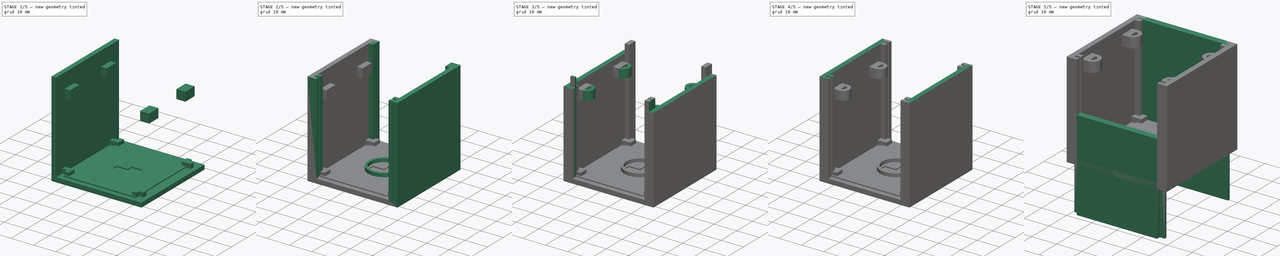
[diagram: build sequence overview — one tinted view per stage of 5, left to right]
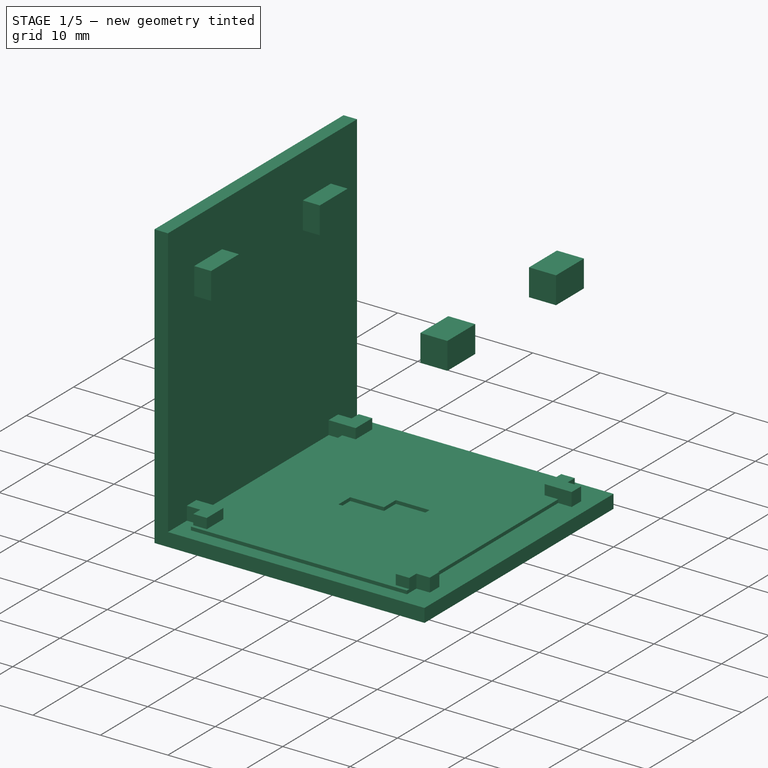
[diagram: stage 1 of 5 — iso view after this stage's code; geometry added in this stage tinted green]
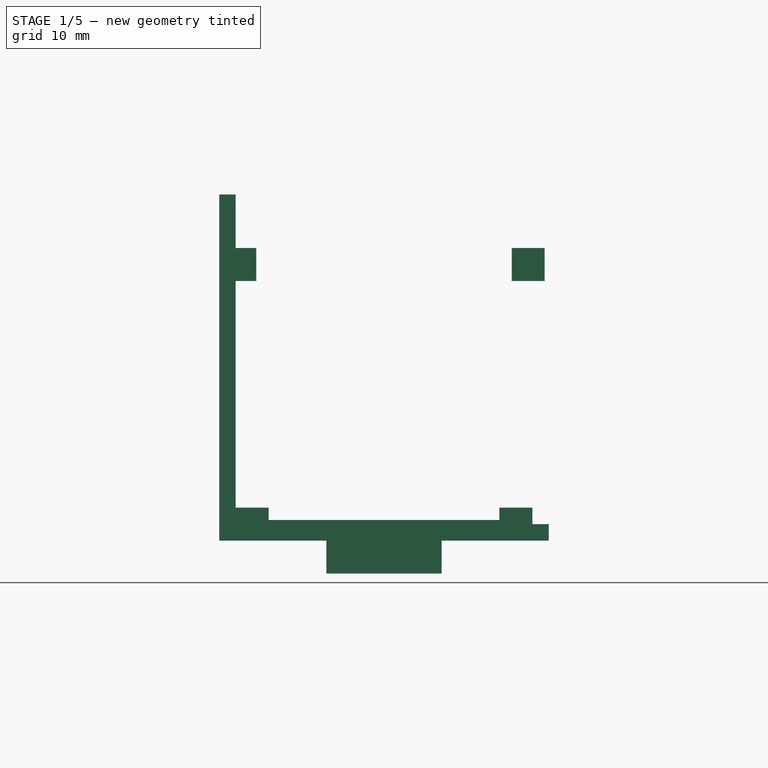
[diagram: stage 1 of 5 — front view after this stage's code; geometry added in this stage tinted green]
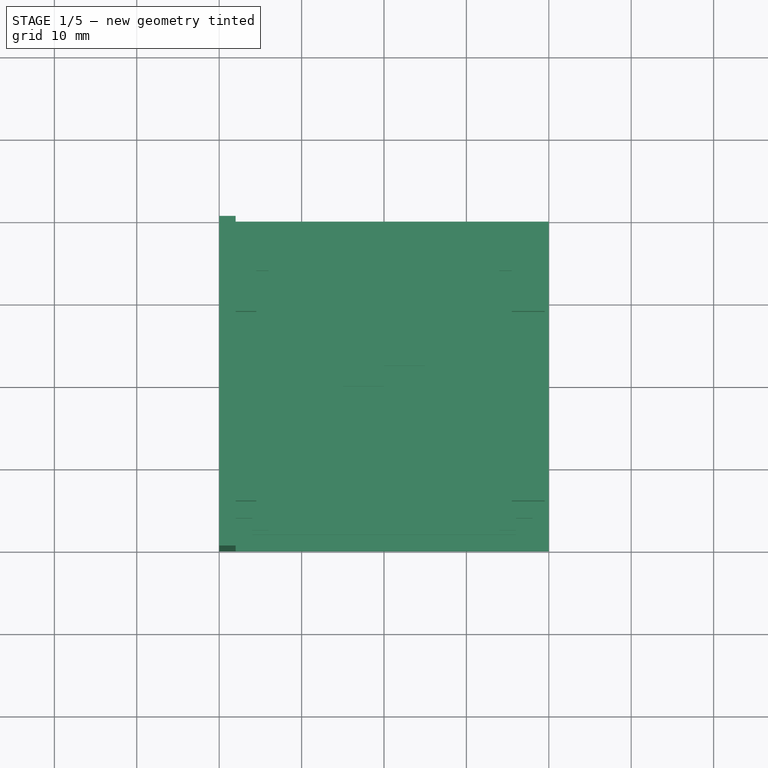
[diagram: stage 1 of 5 — top view after this stage's code; geometry added in this stage tinted green]
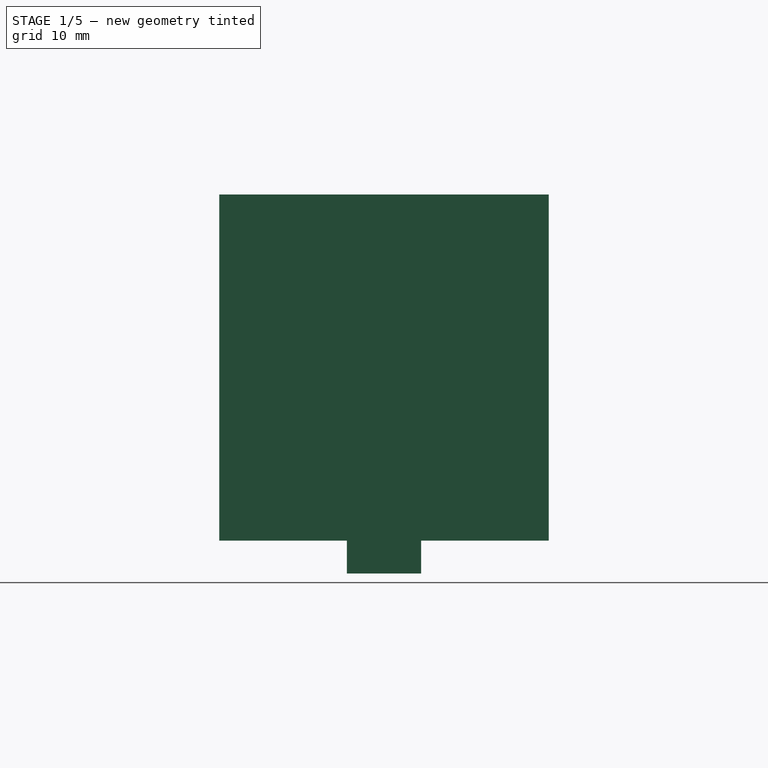
[diagram: stage 1 of 5 — right view after this stage's code; geometry added in this stage tinted green]
FCSTD DOCUMENT  (FreeCAD 1.0R39319 (Git))
Label: cube_case
License: All rights reserved
LicenseURL: https://en.wikipedia.org/wiki/All_rights_reserved
objects: Sketcher::SketchObject×48, Part::Extrusion×39, Part::MultiFuse×13, Part::Fuse×10, Part::Cut×8, PartDesign::Pocket×8, PartDesign::Body×7, PartDesign::FeatureBase×6, PartDesign::Plane×5, PartDesign::Chamfer×3, PartDesign::Fillet×3, PartDesign::Hole×2, PartDesign::Pad×1
note: 241 computed .brp shape members not serialized (recipe doc carries the construction recipe); baked Part::Feature solids carry a one-line shape summary decoded from their .brp

FEATURE [Sketcher::SketchObject] Sketch020
  ArcFitTolerance = 1e-06
  FullyConstrained = true
  MakeInternals = false
  sketch-geometry (4):
    g0: LineSegment StartX=-18 StartY=18 StartZ=0 EndX=-18 EndY=-18 EndZ=0
    g1: LineSegment StartX=-18 StartY=-18 StartZ=0 EndX=18 EndY=-18 EndZ=0
    g2: LineSegment StartX=18 StartY=-18 StartZ=0 EndX=18 EndY=18 EndZ=0
    g3: LineSegment StartX=18 StartY=18 StartZ=0 EndX=-18 EndY=18 EndZ=0
  constraints (12):
    c: Coincident(g0,g1)
    c: Coincident(g1,g2)
    c: Coincident(g2,g3)
    c: Coincident(g3,g0)
    c: Vertical(g0)
    c: Vertical(g2)
    c: Horizontal(g1)
    c: Horizontal(g3)
    c: DistanceX(g3,g3) = 36
    c: DistanceY(g0,g0) = 36
    c: Distance(g-2,g0) = 18
    c: Distance(g-1,g1) = 18
FEATURE [Part::Extrusion] Extrude018
  Base = -> Sketch020
  Dir = (0,0,1)
  DirMode = 2
  FaceMakerClass = Part::FaceMakerBullseye
  FaceMakerMode = 3
  LengthFwd = 1
  LengthRev = 0
  Solid = true
  Symmetric = false
FEATURE [Sketcher::SketchObject] Sketch021
  ArcFitTolerance = 1e-06
  AttachmentSupport = -> [Extrude018]
  FullyConstrained = true
  MakeInternals = false
  MapMode = 5
  Placement = pos=(0,0,1) rot=(0,0,1;0rad)
  sketch-geometry (4):
    g0: LineSegment StartX=-16 StartY=18 StartZ=0 EndX=-16 EndY=-18 EndZ=0
    g1: LineSegment StartX=-16 StartY=-18 StartZ=0 EndX=16 EndY=-18 EndZ=0
    g2: LineSegment StartX=16 StartY=-18 StartZ=0 EndX=16 EndY=18 EndZ=0
    g3: LineSegment StartX=16 StartY=18 StartZ=0 EndX=-16 EndY=18 EndZ=0
  constraints (12):
    c: Coincident(g0,g1)
    c: Coincident(g1,g2)
    c: Coincident(g2,g3)
    c: Coincident(g3,g0)
    c: Vertical(g0)
    c: Vertical(g2)
    c: Horizontal(g1)
    c: Horizontal(g3)
    c: DistanceX(g3,g3) = 32
    c: Distance(g3,g1) = 36
    c: Distance(g-1,g3) = 18
    c: Distance(g-2,g0) = 16
FEATURE [Part::Extrusion] Extrude019
  Base = -> Sketch021
  Dir = (0,0,1)
  DirMode = 2
  FaceMakerClass = Part::FaceMakerBullseye
  FaceMakerMode = 3
  LengthFwd = 1.5
  LengthRev = 0
  Solid = true
  Symmetric = false
FEATURE [Part::MultiFuse] Fusion011
  Placement = pos=(0,-17.5,20) rot=(1,0,0;1.5708rad)
  Refine = true
  Shapes = -> [Extrude018,Extrude019]
FEATURE [PartDesign::FeatureBase] BaseFeature002
  BaseFeature = -> Fusion011
  Suppressed = false
FEATURE [PartDesign::Body] Body002
  AllowCompound = false
  BaseFeature = -> Fusion010
  Group = -> [BaseFeature001,Sketch025,Pocket001]
  Origin = -> Origin002
  Placement = pos=(0,17.5,20) rot=(1,0,0;-1.5708rad)
  Tip = -> Pocket001
FEATURE [Sketcher::SketchObject] Sketch026
  ArcFitTolerance = 1e-06
  AttachmentSupport = -> [BaseFeature002]
  FullyConstrained = true
  MakeInternals = false
  MapMode = 5
  Placement = pos=(0,0,2.5) rot=(0,0,1;0rad)
  sketch-geometry (11):
    g0: GeomPoint X=0 Y=2.5 Z=0
    g1: GeomPoint X=5 Y=2.5 Z=0
    g2: GeomPoint X=5 Y=-2.5 Z=0
    g3: GeomPoint X=-5 Y=-2.5 Z=0
    g4: GeomPoint X=-5 Y=0 Z=0
    g5: LineSegment StartX=0 StartY=0 StartZ=0 EndX=0 EndY=2.5 EndZ=0
    g6: LineSegment StartX=0 StartY=2.5 StartZ=0 EndX=5 EndY=2.5 EndZ=0
    g7: LineSegment StartX=5 StartY=2.5 StartZ=0 EndX=5 EndY=-2.5 EndZ=0
    g8: LineSegment StartX=5 StartY=-2.5 StartZ=0 EndX=-5 EndY=-2.5 EndZ=0
    g9: LineSegment StartX=-5 StartY=-2.5 StartZ=0 EndX=-5 EndY=0 EndZ=0
    g10: LineSegment StartX=-5 StartY=0 StartZ=0 EndX=0 EndY=0 EndZ=0
  constraints (22):
    c: PointOnObject(g0,g-2)
    c: PointOnObject(g4,g-1)
    c: Distance(g0,g-1) = 2.5
    c: Distance(g1,g-1) = 2.5
    c: Distance(g2,g-1) = 2.5
    c: Distance(g3,g-1) = 2.5
    c: DistanceX(g3,g-1) = 5
    c: Distance(g2,g-2) = 5
    c: Distance(g1,g-2) = 5
    c: Distance(g4,g-2) = 5
    c: Coincident(g-1,g5)
    c: Coincident(g5,g0)
    c: Coincident(g5,g6)
    c: Coincident(g6,g1)
    c: Coincident(g6,g7)
    c: Coincident(g7,g2)
    c: Coincident(g7,g8)
    c: Coincident(g8,g3)
    c: Coincident(g8,g9)
    c: Coincident(g9,g4)
    c: Coincident(g9,g10)
    c: Coincident(g10,g5)
FEATURE [PartDesign::Pocket] Pocket002
  BaseFeature = -> BaseFeature002
  Direction = (0,0,-1)
  Length = 5
  Length2 = 5
  Profile = -> Sketch026
  ReferenceAxis = -> Sketch026 [N_Axis]
  Refine = true
  Suppressed = false
  Type = 0
FEATURE [Sketcher::SketchObject] Sketch027
  ArcFitTolerance = 1e-06
  FullyConstrained = true
  MakeInternals = false
  sketch-geometry (4):
    g0: LineSegment StartX=-20 StartY=20 StartZ=0 EndX=-20 EndY=-20 EndZ=0
    g1: LineSegment StartX=-20 StartY=-20 StartZ=0 EndX=20 EndY=-20 EndZ=0
    g2: LineSegment StartX=20 StartY=-20 StartZ=0 EndX=20 EndY=20 EndZ=0
    g3: LineSegment StartX=20 StartY=20 StartZ=0 EndX=-20 EndY=20 EndZ=0
  constraints (12):
    c: Coincident(g0,g1)
    c: Coincident(g1,g2)
    c: Coincident(g2,g3)
    c: Coincident(g3,g0)
    c: Vertical(g0)
    c: Vertical(g2)
    c: Horizontal(g1)
    c: Horizontal(g3)
    c: Distance(g0,g2) = 40
    c: Distance(g1,g3) = 40
    c: Distance(g-1,g3) = 20
    c: Distance(g-2,g2) = 20
FEATURE [Part::Extrusion] Extrude022
  Base = -> Sketch027
  Dir = (0,0,1)
  DirMode = 2
  FaceMakerClass = Part::FaceMakerBullseye
  FaceMakerMode = 3
  LengthFwd = 2
  LengthRev = 0
  Solid = true
  Symmetric = false
FEATURE [Sketcher::SketchObject] Sketch028
  ArcFitTolerance = 1e-06
  AttachmentSupport = -> [Extrude022]
  FullyConstrained = true
  MakeInternals = false
  MapMode = 5
  Placement = pos=(0,0,2) rot=(0,0,1;0rad)
  sketch-geometry (24):
    g0: LineSegment StartX=-16 StartY=17.5 StartZ=0 EndX=-16 EndY=16 EndZ=0
    g1: LineSegment StartX=-16 StartY=16 StartZ=0 EndX=-18 EndY=16 EndZ=0
    g2: LineSegment StartX=-18 StartY=16 StartZ=0 EndX=-18 EndY=14 EndZ=0
    g3: LineSegment StartX=-18 StartY=14 StartZ=0 EndX=-14 EndY=14 EndZ=0
    g4: LineSegment StartX=-14 StartY=14 StartZ=0 EndX=-14 EndY=17.5 EndZ=0
    g5: LineSegment StartX=-14 StartY=17.5 StartZ=0 EndX=-16 EndY=17.5 EndZ=0
    g6: LineSegment StartX=14 StartY=17.5 StartZ=0 EndX=14 EndY=14 EndZ=0
    g7: LineSegment StartX=14 StartY=14 StartZ=0 EndX=18 EndY=14 EndZ=0
    g8: LineSegment StartX=18 StartY=14 StartZ=0 EndX=18 EndY=16 EndZ=0
    g9: LineSegment StartX=18 StartY=16 StartZ=0 EndX=16 EndY=16 EndZ=0
    g10: LineSegment StartX=16 StartY=16 StartZ=0 EndX=16 EndY=17.5 EndZ=0
    g11: LineSegment StartX=16 StartY=17.5 StartZ=0 EndX=14 EndY=17.5 EndZ=0
    g12: LineSegment StartX=-18 StartY=-16 StartZ=0 EndX=-18 EndY=-14 EndZ=0
    g13: LineSegment StartX=-18 StartY=-14 StartZ=0 EndX=-14 EndY=-14 EndZ=0
    g14: LineSegment StartX=-14 StartY=-14 StartZ=0 EndX=-14 EndY=-17.5 EndZ=0
    g15: LineSegment StartX=-14 StartY=-17.5 StartZ=0 EndX=-16 EndY=-17.5 EndZ=0
    g16: LineSegment StartX=-16 StartY=-17.5 StartZ=0 EndX=-16 EndY=-16 EndZ=0
    g17: LineSegment StartX=-16 StartY=-16 StartZ=0 EndX=-18 EndY=-16 EndZ=0
    g18: LineSegment StartX=18 StartY=-16 StartZ=0 EndX=18 EndY=-14 EndZ=0
    g19: LineSegment StartX=18 StartY=-14 StartZ=0 EndX=14 EndY=-14 EndZ=0
    g20: LineSegment StartX=14 StartY=-14 StartZ=0 EndX=14 EndY=-17.5 EndZ=0
    g21: LineSegment StartX=14 StartY=-17.5 StartZ=0 EndX=16 EndY=-17.5 EndZ=0
    g22: LineSegment StartX=16 StartY=-17.5 StartZ=0 EndX=16 EndY=-16 EndZ=0
    g23: LineSegment StartX=16 StartY=-16 StartZ=0 EndX=18 EndY=-16 EndZ=0
  constraints (72):
    c: Coincident(g0,g1)
    c: Coincident(g1,g2)
    c: Coincident(g2,g3)
    c: Horizontal(g3)
    c: Coincident(g3,g4)
    c: Vertical(g4)
    c: Coincident(g4,g5)
    c: Coincident(g5,g0)
    c: Perpendicular(g4,g5)
    c: Perpendicular(g1,g0)
    c: Perpendicular(g3,g2)
    c: Perpendicular(g2,g1)
    c: DistanceY(g0,g0) = 1.5
    c: DistanceX(g1,g1) = 2
    c: DistanceX(g5,g5) = 2
    c: DistanceY(g2,g2) = 2
    c: Distance(g-2,g2) = 18
    c: Distance(g-1,g5) = 17.5
    c: Coincident(g6,g7)
    c: Coincident(g7,g8)
    c: Coincident(g8,g9)
    c: Coincident(g9,g10)
    c: Coincident(g10,g11)
    c: Coincident(g11,g6)
    c: Horizontal(g11)
    c: Perpendicular(g10,g11)
    c: Perpendicular(g8,g9)
    c: Perpendicular(g6,g7)
    c: Perpendicular(g8,g7)
    c: Perpendicular(g10,g9)
    c: Distance(g-1,g11) = 17.5
    c: DistanceY(g10,g10) = 1.5
    c: DistanceY(g8,g8) = 2
    c: DistanceX(g11,g11) = 2
    c: DistanceX(g9,g9) = 2
    c: Distance(g-2,g8) = 18
    c: Vertical(g12)
    c: Coincident(g12,g13)
    c: Horizontal(g13)
    c: Coincident(g13,g14)
    c: Vertical(g14)
    c: Coincident(g14,g15)
    c: Coincident(g15,g16)
    c: Coincident(g16,g17)
    c: Coincident(g17,g12)
    c: Horizontal(g17)
    c: Perpendicular(g16,g17)
    c: Perpendicular(g14,g15)
    c: Distance(g-2,g12) = 18
    c: Distance(g-1,g15) = 17.5
    c: DistanceY(g12,g12) = 2
    c: DistanceY(g16,g16) = 1.5
    c: DistanceX(g15,g15) = 2
    c: DistanceX(g17,g17) = 2
    c: Coincident(g18,g19)
    c: Horizontal(g19)
    c: Coincident(g19,g20)
    c: Vertical(g20)
    c: Coincident(g20,g21)
    c: Horizontal(g21)
    c: Coincident(g21,g22)
    c: Vertical(g22)
    c: Coincident(g22,g23)
    c: Coincident(g23,g18)
    c: Horizontal(g23)
    c: Perpendicular(g18,g23)
    c: Distance(g-2,g18) = 18
    c: Distance(g-1,g21) = 17.5
    c: DistanceY(g18,g18) = 2
    c: DistanceY(g22,g22) = 1.5
    c: DistanceX(g21,g21) = 2
    c: DistanceX(g23,g23) = 2
FEATURE [Part::Extrusion] Extrude023
  Base = -> Sketch028
  Dir = (0,0,1)
  DirMode = 2
  FaceMakerClass = Part::FaceMakerBullseye
  FaceMakerMode = 3
  LengthFwd = 2
  LengthRev = 0
  Solid = true
  Symmetric = false
FEATURE [Part::MultiFuse] Fusion013
  Placement = pos=(0,0,0) rot=(1,0,0;3.14159rad)
  Refine = true
  Shapes = -> [Extrude022,Extrude023]
FEATURE [PartDesign::FeatureBase] BaseFeature003
  BaseFeature = -> Fusion013
  Suppressed = false
FEATURE [Sketcher::SketchObject] Sketch030
  ArcFitTolerance = 1e-06
  AttachmentSupport = -> [BaseFeature003]
  FullyConstrained = true
  MakeInternals = false
  MapMode = 5
  Placement = pos=(0,0,0) rot=(1,0,0;3.14159rad)
  sketch-geometry (4):
    g0: Circle CenterX=-15.5 CenterY=11.5 CenterZ=0 NormalX=0 NormalY=0 NormalZ=1 AngleXU=0 Radius=1.7
    g1: Circle CenterX=15.5 CenterY=11.5 CenterZ=0 NormalX=0 NormalY=0 NormalZ=1 AngleXU=0 Radius=1.7
    g2: Circle CenterX=-15.5 CenterY=-11.5 CenterZ=0 NormalX=0 NormalY=0 NormalZ=1 AngleXU=0 Radius=1.7
    g3: Circle CenterX=15.5 CenterY=-11.5 CenterZ=0 NormalX=0 NormalY=0 NormalZ=1 AngleXU=0 Radius=1.7
  constraints (12):
    c: Diameter(g0) = 3.4
    c: Diameter(g1) = 3.4
    c: Diameter(g2) = 3.4
    c: Diameter(g3) = 3.4
    c: Distance(g0,g-2) = 15.5
    c: Distance(g0,g-1) = 11.5
    c: Distance(g1,g-2) = 15.5
    c: Distance(g1,g-1) = 11.5
    c: Distance(g3,g-1) = 11.5
    c: Distance(g3,g-2) = 15.5
    c: Distance(g2,g-2) = 15.5
    c: Distance(g2,g-1) = 11.5
FEATURE [PartDesign::Pocket] Pocket003
  BaseFeature = -> BaseFeature003
  Direction = (0,0,1)
  Length = 5
  Length2 = 5
  Profile = -> Sketch030
  ReferenceAxis = -> Sketch030 [N_Axis]
  Refine = true
  Suppressed = false
  Type = 0
FEATURE [PartDesign::Pocket] Pocket004
  BaseFeature = -> Pocket003
  Direction = (0,0,1)
  Length = 5
  Length2 = 5
  Profile = -> Sketch030
  ReferenceAxis = -> Sketch030 [N_Axis]
  Refine = true
  Suppressed = false
  Type = 0
FEATURE [Sketcher::SketchObject] Sketch033
  ArcFitTolerance = 1e-06
  AttachmentSupport = -> [Extrude025]
  FullyConstrained = true
  MakeInternals = false
  MapMode = 5
  Placement = pos=(0,0,2) rot=(0,0,1;0rad)
  sketch-geometry (1):
    g0: Circle CenterX=0 CenterY=0 CenterZ=0 NormalX=0 NormalY=0 NormalZ=1 AngleXU=0 Radius=1.75
  constraints (2):
    c: Diameter(g0) = 3.5
    c: Coincident(g0,g-1)
FEATURE [PartDesign::Hole] Hole001
  CustomThreadClearance = 0
  Depth = 25
  DepthType = 0
  Diameter = 3.5
  DrillForDepth = false
  DrillPoint = 1
  DrillPointAngle = 118
  HoleCutCountersinkAngle = 90
  HoleCutCustomValues = false
  HoleCutDepth = 0
  HoleCutDiameter = 6.1
  HoleCutType = 0
  ModelThread = false
  Profile = -> Sketch033
  Refine = true
  Suppressed = false
  Tapered = false
  TaperedAngle = 90
  ThreadClass = 0
  ThreadDepth = 25
  ThreadDepthType = 0
  ThreadDirection = 0
  ThreadFit = 0
  ThreadSize = 0
  ThreadType = 0
  Threaded = false
  UseCustomThreadClearance = false
FEATURE [Sketcher::SketchObject] Sketch034
  ArcFitTolerance = 1e-06
  FullyConstrained = true
  MakeInternals = false
  sketch-geometry (4):
    g0: LineSegment StartX=-20 StartY=20 StartZ=0 EndX=-20 EndY=-20 EndZ=0
    g1: LineSegment StartX=-20 StartY=-20 StartZ=0 EndX=-18 EndY=-20 EndZ=0
    g2: LineSegment StartX=-18 StartY=-20 StartZ=0 EndX=-18 EndY=20 EndZ=0
    g3: LineSegment StartX=-18 StartY=20 StartZ=0 EndX=-20 EndY=20 EndZ=0
  constraints (12):
    c: Coincident(g0,g1)
    c: Coincident(g1,g2)
    c: Coincident(g2,g3)
    c: Coincident(g3,g0)
    c: Vertical(g0)
    c: Vertical(g2)
    c: Horizontal(g1)
    c: Horizontal(g3)
    c: Distance(g0,g2) = 2
    c: Distance(g1,g3) = 40
    c: Distance(g-2,g0) = 20
    c: Distance(g-1,g3) = 20
FEATURE [Part::Extrusion] Extrude027
  Base = -> Sketch034
  Dir = (0,0,1)
  DirMode = 2
  FaceMakerClass = Part::FaceMakerBullseye
  FaceMakerMode = 3
  LengthFwd = 42
  LengthRev = 0
  Solid = true
  Symmetric = false
FEATURE [PartDesign::Chamfer] Chamfer002
  Angle = 45
  Base = -> Pocket004 [Edge14,Edge15,Edge13,Edge12]
  BaseFeature = -> Pocket004
  ChamferType = 0
  FlipDirection = false
  Refine = true
  Size = 1.3
  Size2 = 1
  SupportTransform = false
  Suppressed = false
  UseAllEdges = false
FEATURE [PartDesign::Plane] DatumPlane
  AttachmentOffset = pos=(0,0,-4.5) rot=(0,0,1;0rad)
  Length = 60
  MapMode = 5
  Placement = pos=(-15.5,0,0) rot=(0.57735,-0.57735,-0.57735;2.0944rad)
  ResizeMode = 0
  Width = 60
FEATURE [PartDesign::Plane] DatumPlane001
  AttachmentOffset = pos=(0,0,-4.5) rot=(0,0,1;0rad)
  Length = 60
  MapMode = 5
  Placement = pos=(15.5,0,0) rot=(0.57735,0.57735,0.57735;2.0944rad)
  ResizeMode = 0
  Width = 60
FEATURE [Sketcher::SketchObject] Sketch044
  ArcFitTolerance = 1e-06
  AttachmentSupport = -> [DatumPlane]
  FullyConstrained = true
  MakeInternals = false
  MapMode = 5
  Placement = pos=(-15.5,0,0) rot=(0.57735,-0.57735,-0.57735;2.0944rad)
  sketch-geometry (8):
    g0: LineSegment StartX=-8.55 StartY=35.5 StartZ=0 EndX=-14.45 EndY=35.5 EndZ=0
    g1: LineSegment StartX=-14.45 StartY=35.5 StartZ=0 EndX=-14.45 EndY=31.5 EndZ=0
    g2: LineSegment StartX=-14.45 StartY=31.5 StartZ=0 EndX=-8.55 EndY=31.5 EndZ=0
    g3: LineSegment StartX=-8.55 StartY=31.5 StartZ=0 EndX=-8.55 EndY=35.5 EndZ=0
    g4: LineSegment StartX=14.45 StartY=35.5 StartZ=0 EndX=8.55 EndY=35.5 EndZ=0
    g5: LineSegment StartX=8.55 StartY=35.5 StartZ=0 EndX=8.55 EndY=31.5 EndZ=0
    g6: LineSegment StartX=8.55 StartY=31.5 StartZ=0 EndX=14.45 EndY=31.5 EndZ=0
    g7: LineSegment StartX=14.45 StartY=31.5 StartZ=0 EndX=14.45 EndY=35.5 EndZ=0
  constraints (24):
    c: Coincident(g0,g1)
    c: Coincident(g1,g2)
    c: Coincident(g2,g3)
    c: Coincident(g3,g0)
    c: Horizontal(g0)
    c: Horizontal(g2)
    c: Vertical(g1)
    c: Vertical(g3)
    c: Distance(g1,g3) = 5.9
    c: Distance(g0,g2) = 4
    c: Coincident(g4,g5)
    c: Coincident(g5,g6)
    c: Coincident(g6,g7)
    c: Coincident(g7,g4)
    c: Horizontal(g4)
    c: Horizontal(g6)
    c: Vertical(g5)
    c: Vertical(g7)
    c: Distance(g5,g7) = 5.9
    c: Distance(g4,g6) = 4
    c: Distance(g-2,g5) = 8.55
    c: Distance(g-2,g3) = 8.55
    c: Distance(g-1,g2) = 31.5
    c: Distance(g6,g-1) = 31.5
FEATURE [PartDesign::Body] Body005
  AllowCompound = false
  BaseFeature = -> Fusion014
  Group = -> [BaseFeature004,Fillet,DatumPlane,DatumPlane001,Sketch044]
  Origin = -> Origin005
  Tip = -> Fillet
FEATURE [PartDesign::Fillet] Fillet003
  Base = -> Chamfer002 [Edge16,Edge4,Edge5,Edge14,Edge12,Edge2,Edge11,Edge3]
  BaseFeature = -> Chamfer002
  Radius = 1
  Refine = true
  SupportTransform = false
  Suppressed = false
  UseAllEdges = false
FEATURE [PartDesign::Body] Body004
  AllowCompound = false
  BaseFeature = -> Fusion013
  Group = -> [BaseFeature003,Sketch030,Pocket003,Pocket004,Chamfer,Pocket005,Chamfer001,Fillet001,Chamfer002,Fillet003]
  Origin = -> Origin004
  Placement = pos=(0,0,40) rot=(1,0,0;3.14159rad)
  Tip = -> Fillet003
FEATURE [Sketcher::SketchObject] Sketch045
  ArcFitTolerance = 1e-06
  AttachmentSupport = -> [DatumPlane001]
  FullyConstrained = true
  MakeInternals = false
  MapMode = 5
  Placement = pos=(15.5,0,0) rot=(0.57735,0.57735,0.57735;2.0944rad)
  sketch-geometry (8):
    g0: LineSegment StartX=-8.55 StartY=35.5 StartZ=0 EndX=-14.45 EndY=35.5 EndZ=0
    g1: LineSegment StartX=-14.45 StartY=35.5 StartZ=0 EndX=-14.45 EndY=31.5 EndZ=0
    g2: LineSegment StartX=-14.45 StartY=31.5 StartZ=0 EndX=-8.55 EndY=31.5 EndZ=0
    g3: LineSegment StartX=-8.55 StartY=31.5 StartZ=0 EndX=-8.55 EndY=35.5 EndZ=0
    g4: LineSegment StartX=14.45 StartY=35.5 StartZ=0 EndX=8.55 EndY=35.5 EndZ=0
    g5: LineSegment StartX=8.55 StartY=35.5 StartZ=0 EndX=8.55 EndY=31.5 EndZ=0
    g6: LineSegment StartX=8.55 StartY=31.5 StartZ=0 EndX=14.45 EndY=31.5 EndZ=0
    g7: LineSegment StartX=14.45 StartY=31.5 StartZ=0 EndX=14.45 EndY=35.5 EndZ=0
  constraints (24):
    c: Coincident(g0,g1)
    c: Coincident(g1,g2)
    c: Coincident(g2,g3)
    c: Coincident(g3,g0)
    c: Horizontal(g0)
    c: Horizontal(g2)
    c: Vertical(g1)
    c: Vertical(g3)
    c: Distance(g1,g3) = 5.9
    c: Distance(g0,g2) = 4
    c: Coincident(g4,g5)
    c: Coincident(g5,g6)
    c: Coincident(g6,g7)
    c: Coincident(g7,g4)
    c: Horizontal(g4)
    c: Horizontal(g6)
    c: Vertical(g5)
    c: Vertical(g7)
    c: Distance(g5,g7) = 5.9
    c: Distance(g4,g6) = 4
    c: Distance(g-2,g5) = 8.55
    c: Distance(g-2,g3) = 8.55
    c: Distance(g-1,g2) = 31.5
    c: Distance(g-1,g6) = 31.5
FEATURE [Part::Extrusion] Extrude037
  Base = -> Sketch044
  Dir = (-1,0,0)
  DirMode = 2
  FaceMakerClass = Part::FaceMakerBullseye
  FaceMakerMode = 3
  LengthFwd = 4
  LengthRev = 0
  Solid = true
  Symmetric = false
FEATURE [Sketcher::SketchObject] Sketch046
  ArcFitTolerance = 1e-06
  AttachmentSupport = -> [Pocket002]
  FullyConstrained = true
  MakeInternals = false
  MapMode = 5
  Placement = pos=(0,0,2.5) rot=(0,0,1;0rad)
  sketch-geometry (6):
    g0: LineSegment StartX=-2 StartY=4.5 StartZ=0 EndX=7 EndY=4.5 EndZ=0
    g1: LineSegment StartX=7 StartY=4.5 StartZ=0 EndX=7 EndY=-4.5 EndZ=0
    g2: LineSegment StartX=7 StartY=-4.5 StartZ=0 EndX=-7 EndY=-4.5 EndZ=0
    g3: LineSegment StartX=-7 StartY=-4.5 StartZ=0 EndX=-7 EndY=2 EndZ=0
    g4: LineSegment StartX=-7 StartY=2 StartZ=0 EndX=-2 EndY=2 EndZ=0
    g5: LineSegment StartX=-2 StartY=2 StartZ=0 EndX=-2 EndY=4.5 EndZ=0
  constraints (18):
    c: Horizontal(g0)
    c: Coincident(g0,g1)
    c: Coincident(g1,g2)
    c: Coincident(g2,g3)
    c: Coincident(g3,g4)
    c: Coincident(g4,g5)
    c: Coincident(g5,g0)
    c: Perpendicular(g0,g5)
    c: Perpendicular(g0,g1)
    c: Perpendicular(g1,g2)
    c: Perpendicular(g3,g2)
    c: Perpendicular(g5,g4)
    c: Distance(g-1,g0) = 4.5
    c: Distance(g-2,g5) = 2
    c: Distance(g-1,g4) = 2
    c: Distance(g3,g-2) = 7
    c: Distance(g-1,g2) = 4.5
    c: Distance(g-2,g1) = 7
FEATURE [Part::Extrusion] Extrude038
  Base = -> Sketch045
  Dir = (1,0,0)
  DirMode = 2
  FaceMakerClass = Part::FaceMakerBullseye
  FaceMakerMode = 3
  LengthFwd = 4
  LengthRev = 0
  Solid = true
  Symmetric = false
FEATURE [PartDesign::Plane] DatumPlane002
  AttachmentOffset = pos=(0,0,-4.5) rot=(0,0,1;0rad)
  Length = 123.001
  MapMode = 5
  Placement = pos=(15.5,0,0) rot=(0.57735,0.57735,0.57735;2.0944rad)
  ResizeMode = 0
  Width = 172.401
FEATURE [Sketcher::SketchObject] Sketch047
  ArcFitTolerance = 1e-06
  AttachmentSupport = -> [DatumPlane002]
  FullyConstrained = true
  MakeInternals = false
  MapMode = 5
  Placement = pos=(15.5,0,0) rot=(0.57735,0.57735,0.57735;2.0944rad)
  sketch-geometry (8):
    g0: LineSegment StartX=-8.55 StartY=35.5 StartZ=0 EndX=-14.45 EndY=35.5 EndZ=0
    g1: LineSegment StartX=-14.45 StartY=35.5 StartZ=0 EndX=-14.45 EndY=31.5 EndZ=0
    g2: LineSegment StartX=-14.45 StartY=31.5 StartZ=0 EndX=-8.55 EndY=31.5 EndZ=0
    g3: LineSegment StartX=-8.55 StartY=31.5 StartZ=0 EndX=-8.55 EndY=35.5 EndZ=0
    g4: LineSegment StartX=14.45 StartY=35.5 StartZ=0 EndX=8.55 EndY=35.5 EndZ=0
    g5: LineSegment StartX=8.55 StartY=35.5 StartZ=0 EndX=8.55 EndY=31.5 EndZ=0
    g6: LineSegment StartX=8.55 StartY=31.5 StartZ=0 EndX=14.45 EndY=31.5 EndZ=0
    g7: LineSegment StartX=14.45 StartY=31.5 StartZ=0 EndX=14.45 EndY=35.5 EndZ=0
  constraints (24):
    c: Coincident(g0,g1)
    c: Coincident(g1,g2)
    c: Coincident(g2,g3)
    c: Coincident(g3,g0)
    c: Horizontal(g0)
    c: Horizontal(g2)
    c: Vertical(g1)
    c: Vertical(g3)
    c: Distance(g1,g3) = 5.9
    c: Distance(g0,g2) = 4
    c: Coincident(g4,g5)
    c: Coincident(g5,g6)
    c: Coincident(g6,g7)
    c: Coincident(g7,g4)
    c: Horizontal(g4)
    c: Horizontal(g6)
    c: Vertical(g5)
    c: Vertical(g7)
    c: Distance(g5,g7) = 5.9
    c: Distance(g4,g6) = 4
    c: Distance(g-2,g5) = 8.55
    c: Distance(g-2,g3) = 8.55
    c: Distance(g-1,g2) = 31.5
    c: Distance(g-1,g6) = 31.5
FEATURE [PartDesign::Pad] Pad
  BaseFeature = -> Pocket002
  Direction = (0,0,1)
  Length = 6.5
  Length2 = 10
  Profile = -> Sketch046
  ReferenceAxis = -> Sketch046 [N_Axis]
  Refine = true
  Reversed = true
  Suppressed = false
  Type = 0
FEATURE [PartDesign::Pocket] Pocket007
  BaseFeature = -> Pad
  Direction = (0,0,-1)
  Length = 6.5
  Length2 = 5
  Profile = -> Sketch026
  ReferenceAxis = -> Sketch026 [N_Axis]
  Refine = true
  Suppressed = false
  Type = 0
FEATURE [PartDesign::Body] Body003
  AllowCompound = false
  BaseFeature = -> Fusion011
  Group = -> [BaseFeature002,Sketch026,Pocket002,Sketch046,Pad,Pocket007]
  Origin = -> Origin003
  Placement = pos=(0,-17.5,20) rot=(1,0,0;1.5708rad)
  Tip = -> Pocket007
FEATURE [PartDesign::Plane] DatumPlane003
  AttachmentOffset = pos=(0,0,-4.5) rot=(0,0,1;0rad)
  Length = 123.001
  MapMode = 5
  Placement = pos=(-15.5,0,0) rot=(0.57735,-0.57735,-0.57735;2.0944rad)
  ResizeMode = 0
  Width = 172.401
FEATURE [PartDesign::Plane] DatumPlane004
  AttachmentOffset = pos=(0,0,-4.5) rot=(0,0,1;0rad)
  Length = 123.001
  MapMode = 5
  Placement = pos=(15.5,0,0) rot=(0.57735,0.57735,0.57735;2.0944rad)
  ResizeMode = 0
  Width = 172.401
FEATURE [Sketcher::SketchObject] Sketch048
  ArcFitTolerance = 1e-06
  AttachmentSupport = -> [DatumPlane004]
  FullyConstrained = true
  MakeInternals = false
  MapMode = 5
  Placement = pos=(15.5,0,0) rot=(0.57735,0.57735,0.57735;2.0944rad)
  sketch-geometry (4):
    g0: LineSegment StartX=-8.55 StartY=35.5 StartZ=0 EndX=-14.45 EndY=35.5 EndZ=0
    g1: LineSegment StartX=-14.45 StartY=35.5 StartZ=0 EndX=-14.45 EndY=31.5 EndZ=0
    g2: LineSegment StartX=-14.45 StartY=31.5 StartZ=0 EndX=-8.55 EndY=31.5 EndZ=0
    g3: LineSegment StartX=-8.55 StartY=31.5 StartZ=0 EndX=-8.55 EndY=35.5 EndZ=0
  constraints (12):
    c: Coincident(g0,g1)
    c: Coincident(g1,g2)
    c: Coincident(g2,g3)
    c: Coincident(g3,g0)
    c: Horizontal(g0)
    c: Horizontal(g2)
    c: Vertical(g1)
    c: Vertical(g3)
    c: Distance(g1,g3) = 5.9
    c: Distance(g0,g2) = 4
    c: Distance(g-2,g3) = 8.55
    c: Distance(g-1,g2) = 31.5
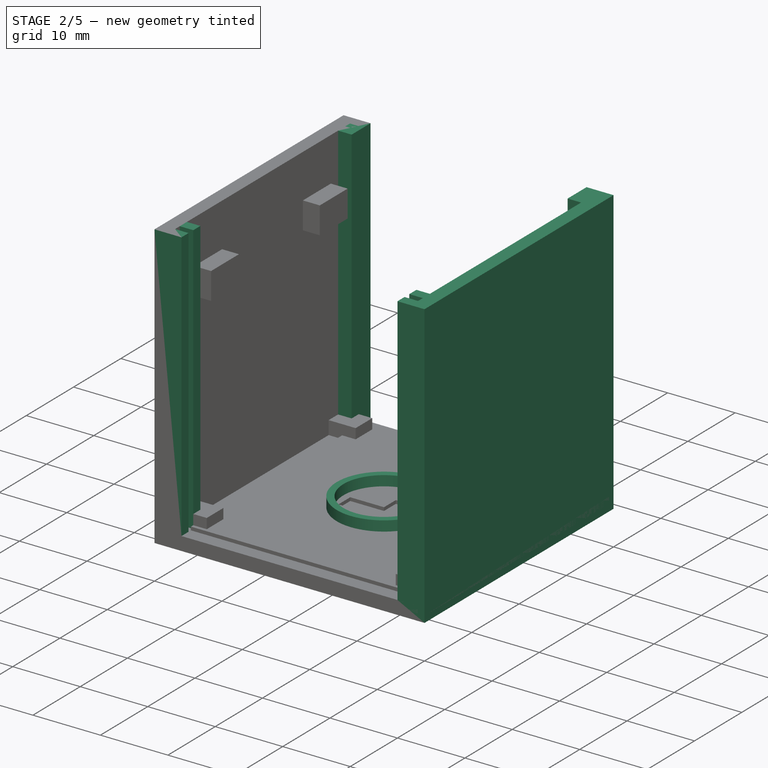
[diagram: stage 2 of 5 — iso view after this stage's code; geometry added in this stage tinted green]
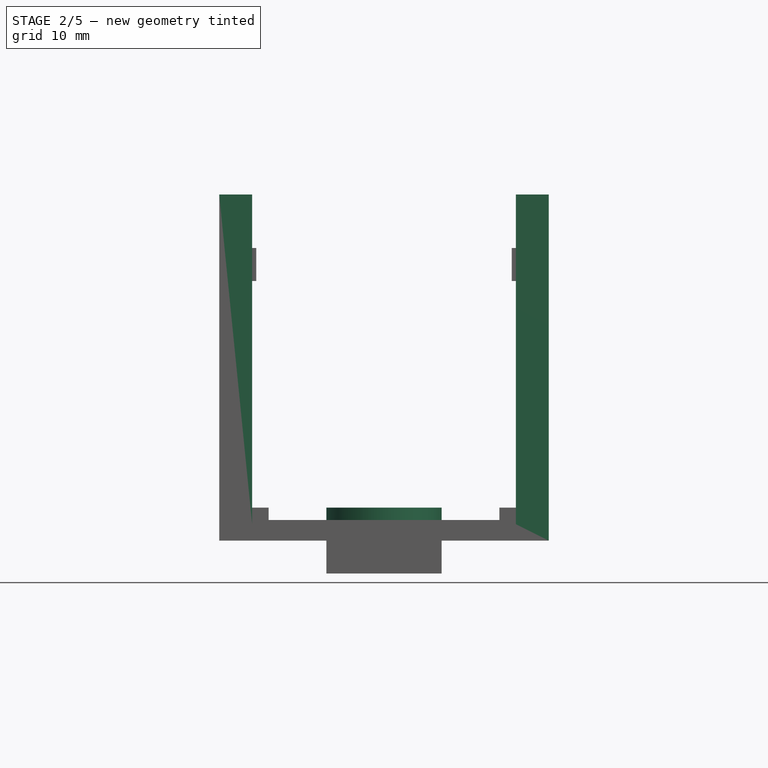
[diagram: stage 2 of 5 — front view after this stage's code; geometry added in this stage tinted green]
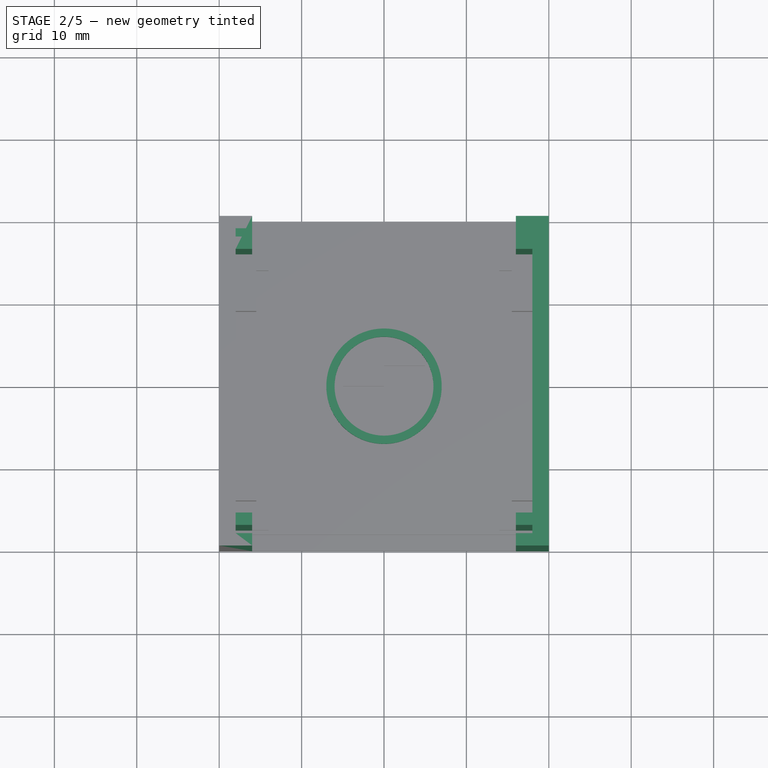
[diagram: stage 2 of 5 — top view after this stage's code; geometry added in this stage tinted green]
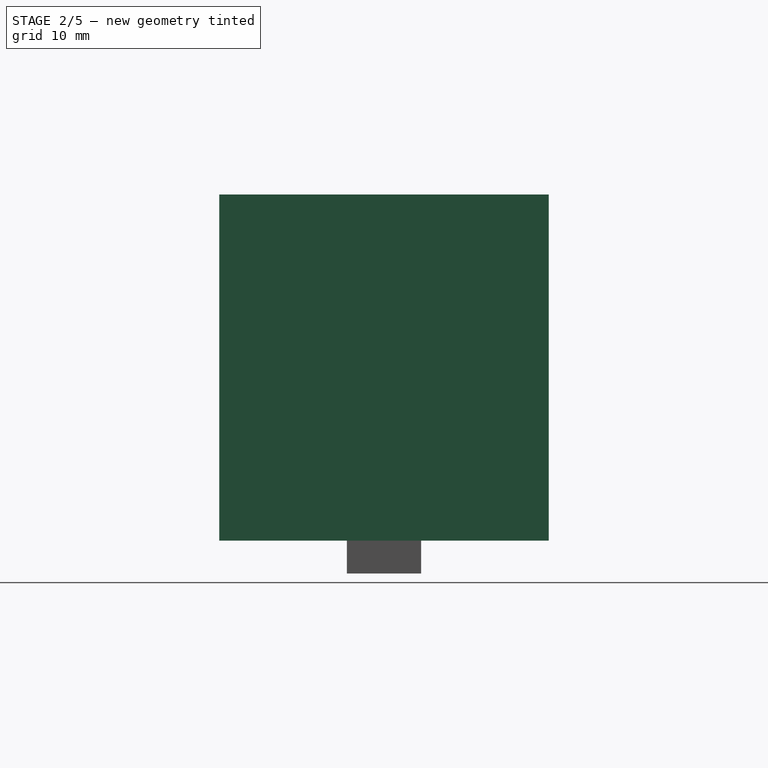
[diagram: stage 2 of 5 — right view after this stage's code; geometry added in this stage tinted green]
FEATURE [Sketcher::SketchObject] Sketch032
  ArcFitTolerance = 1e-06
  AttachmentSupport = -> [Extrude025]
  FullyConstrained = true
  MakeInternals = false
  MapMode = 5
  Placement = pos=(0,0,2) rot=(0,0,1;0rad)
  sketch-geometry (2):
    g0: Circle CenterX=0 CenterY=0 CenterZ=0 NormalX=0 NormalY=0 NormalZ=1 AngleXU=0 Radius=7
    g1: Circle CenterX=0 CenterY=0 CenterZ=0 NormalX=0 NormalY=0 NormalZ=1 AngleXU=0 Radius=6
  constraints (4):
    c: Diameter(g0) = 14
    c: Coincident(g0,g-1)
    c: Diameter(g1) = 12
    c: Coincident(g1,g0)
FEATURE [Part::Extrusion] Extrude026
  Base = -> Sketch032
  Dir = (0,0,1)
  DirMode = 2
  FaceMakerClass = Part::FaceMakerBullseye
  FaceMakerMode = 3
  LengthFwd = 2
  LengthRev = 0
  Solid = true
  Symmetric = false
FEATURE [PartDesign::Body] Body006
  AllowCompound = false
  Group = -> [Sketch033,Hole001]
  Origin = -> Origin006
  Tip = -> Hole001
FEATURE [Part::Fuse] Fusion015
  Base = -> Body006
  Refine = true
  Tool = -> Extrude026
FEATURE [Part::Fuse] Fusion016
  Base = -> Body006
  Refine = true
  Tool = -> Extrude027
FEATURE [Part::Fuse] Fusion017
  Base = -> Fusion015
  Refine = true
  Tool = -> Fusion016
FEATURE [Sketcher::SketchObject] Sketch035
  ArcFitTolerance = 1e-06
  FullyConstrained = true
  MakeInternals = false
  sketch-geometry (4):
    g0: LineSegment StartX=20 StartY=20 StartZ=0 EndX=18 EndY=20 EndZ=0
    g1: LineSegment StartX=18 StartY=20 StartZ=0 EndX=18 EndY=-20 EndZ=0
    g2: LineSegment StartX=18 StartY=-20 StartZ=0 EndX=20 EndY=-20 EndZ=0
    g3: LineSegment StartX=20 StartY=-20 StartZ=0 EndX=20 EndY=20 EndZ=0
  constraints (12):
    c: Coincident(g0,g1)
    c: Coincident(g1,g2)
    c: Coincident(g2,g3)
    c: Coincident(g3,g0)
    c: Horizontal(g0)
    c: Horizontal(g2)
    c: Vertical(g1)
    c: Vertical(g3)
    c: Distance(g1,g3) = 2
    c: Distance(g0,g2) = 40
    c: Distance(g-2,g3) = 20
    c: Distance(g-1,g0) = 20
FEATURE [Part::Extrusion] Extrude028
  Base = -> Sketch035
  Dir = (0,0,1)
  DirMode = 2
  FaceMakerClass = Part::FaceMakerBullseye
  FaceMakerMode = 3
  LengthFwd = 42
  LengthRev = 0
  Solid = true
  Symmetric = false
FEATURE [Part::Fuse] Fusion018
  Base = -> Fusion017
  Refine = true
  Tool = -> Extrude028
FEATURE [Sketcher::SketchObject] Sketch036
  ArcFitTolerance = 1e-06
  AttachmentSupport = -> [Fusion018]
  FullyConstrained = true
  MakeInternals = false
  MapMode = 5
  Placement = pos=(-18,0,0) rot=(0.57735,0.57735,0.57735;2.0944rad)
  sketch-geometry (4):
    g0: LineSegment StartX=-20 StartY=42 StartZ=0 EndX=-20 EndY=1.42e-14 EndZ=0
    g1: LineSegment StartX=-20 StartY=1.42e-14 StartZ=0 EndX=-16 EndY=1.42e-14 EndZ=0
    g2: LineSegment StartX=-16 StartY=1.42e-14 StartZ=0 EndX=-16 EndY=42 EndZ=0
    g3: LineSegment StartX=-16 StartY=42 StartZ=0 EndX=-20 EndY=42 EndZ=0
  constraints (12):
    c: Coincident(g0,g1)
    c: Coincident(g1,g2)
    c: Coincident(g2,g3)
    c: Coincident(g3,g0)
    c: Vertical(g0)
    c: Vertical(g2)
    c: Horizontal(g1)
    c: Horizontal(g3)
    c: Distance(g0,g2) = 4
    c: Distance(g1,g3) = 42
    c: Distance(g-1,g3) = 42
    c: Distance(g-2,g0) = 20
FEATURE [Part::Extrusion] Extrude029
  Base = -> Sketch036
  Dir = (1,0,0)
  DirMode = 2
  FaceMakerClass = Part::FaceMakerBullseye
  FaceMakerMode = 3
  LengthFwd = 2
  LengthRev = 0
  Solid = true
  Symmetric = false
FEATURE [Part::Fuse] Fusion019
  Base = -> Fusion018
  Refine = true
  Tool = -> Extrude029
FEATURE [Sketcher::SketchObject] Sketch037
  ArcFitTolerance = 1e-06
  AttachmentSupport = -> [Fusion019]
  FullyConstrained = true
  MakeInternals = false
  MapMode = 5
  Placement = pos=(-16,0,0) rot=(0.57735,0.57735,0.57735;2.0944rad)
  sketch-geometry (4):
    g0: LineSegment StartX=-18.5 StartY=42 StartZ=0 EndX=-18.5 EndY=2 EndZ=0
    g1: LineSegment StartX=-18.5 StartY=2 StartZ=0 EndX=-17.5 EndY=2 EndZ=0
    g2: LineSegment StartX=-17.5 StartY=2 StartZ=0 EndX=-17.5 EndY=42 EndZ=0
    g3: LineSegment StartX=-17.5 StartY=42 StartZ=0 EndX=-18.5 EndY=42 EndZ=0
  constraints (12):
    c: Coincident(g0,g1)
    c: Coincident(g1,g2)
    c: Coincident(g2,g3)
    c: Coincident(g3,g0)
    c: Vertical(g0)
    c: Vertical(g2)
    c: Horizontal(g1)
    c: Horizontal(g3)
    c: Distance(g0,g2) = 1
    c: Distance(g1,g3) = 40
    c: Distance(g-1,g3) = 42
    c: Distance(g-2,g0) = 18.5
FEATURE [Part::Extrusion] Extrude030
  Base = -> Sketch037
  Dir = (1,0,0)
  DirMode = 2
  FaceMakerClass = Part::FaceMakerBullseye
  FaceMakerMode = 3
  LengthFwd = -2
  LengthRev = 0
  Solid = true
  Symmetric = false
FEATURE [Part::Cut] Cut004
  Base = -> Fusion019
  Refine = true
  Tool = -> Extrude030
FEATURE [Sketcher::SketchObject] Sketch038
  ArcFitTolerance = 1e-06
  AttachmentSupport = -> [Cut004]
  FullyConstrained = true
  MakeInternals = false
  MapMode = 5
  Placement = pos=(18,0,0) rot=(0.57735,-0.57735,-0.57735;2.0944rad)
  sketch-geometry (4):
    g0: LineSegment StartX=16 StartY=42 StartZ=0 EndX=16 EndY=0 EndZ=0
    g1: LineSegment StartX=16 StartY=0 StartZ=0 EndX=20 EndY=0 EndZ=0
    g2: LineSegment StartX=20 StartY=0 StartZ=0 EndX=20 EndY=42 EndZ=0
    g3: LineSegment StartX=20 StartY=42 StartZ=0 EndX=16 EndY=42 EndZ=0
  constraints (12):
    c: Coincident(g0,g1)
    c: Coincident(g1,g2)
    c: Coincident(g2,g3)
    c: Coincident(g3,g0)
    c: Vertical(g0)
    c: Vertical(g2)
    c: Horizontal(g1)
    c: Horizontal(g3)
    c: Distance(g0,g2) = 4
    c: Distance(g1,g3) = 42
    c: Distance(g-1,g3) = 42
    c: Distance(g-2,g2) = 20
FEATURE [Part::Extrusion] Extrude031
  Base = -> Sketch038
  Dir = (-1,0,0)
  DirMode = 2
  FaceMakerClass = Part::FaceMakerBullseye
  FaceMakerMode = 3
  LengthFwd = 2
  LengthRev = 0
  Solid = true
  Symmetric = false
FEATURE [Part::MultiFuse] Fusion020
  Refine = true
  Shapes = -> [Cut004,Extrude031]
FEATURE [Sketcher::SketchObject] Sketch039
  ArcFitTolerance = 1e-06
  AttachmentSupport = -> [Fusion020]
  FullyConstrained = true
  MakeInternals = false
  MapMode = 5
  Placement = pos=(16,0,0) rot=(0.57735,-0.57735,-0.57735;2.0944rad)
  sketch-geometry (4):
    g0: LineSegment StartX=17.5 StartY=42 StartZ=0 EndX=17.5 EndY=2 EndZ=0
    g1: LineSegment StartX=17.5 StartY=2 StartZ=0 EndX=18.5 EndY=2 EndZ=0
    g2: LineSegment StartX=18.5 StartY=2 StartZ=0 EndX=18.5 EndY=42 EndZ=0
    g3: LineSegment StartX=18.5 StartY=42 StartZ=0 EndX=17.5 EndY=42 EndZ=0
  constraints (12):
    c: Coincident(g0,g1)
    c: Coincident(g1,g2)
    c: Coincident(g2,g3)
    c: Coincident(g3,g0)
    c: Vertical(g0)
    c: Vertical(g2)
    c: Horizontal(g1)
    c: Horizontal(g3)
    c: Distance(g0,g2) = 1
    c: Distance(g1,g3) = 40
    c: Distance(g-1,g3) = 42
    c: Distance(g-2,g2) = 18.5
FEATURE [Part::Extrusion] Extrude032
  Base = -> Sketch039
  Dir = (-1,0,0)
  DirMode = 2
  FaceMakerClass = Part::FaceMakerBullseye
  FaceMakerMode = 3
  LengthFwd = -2
  LengthRev = 0
  Solid = true
  Symmetric = false
FEATURE [Part::Cut] Cut005
  Base = -> Fusion020
  Refine = true
  Tool = -> Extrude032
FEATURE [Sketcher::SketchObject] Sketch040
  ArcFitTolerance = 1e-06
  AttachmentSupport = -> [Cut005]
  FullyConstrained = true
  MakeInternals = false
  MapMode = 5
  Placement = pos=(-18,0,0) rot=(0.57735,0.57735,0.57735;2.0944rad)
  sketch-geometry (4):
    g0: LineSegment StartX=16 StartY=42 StartZ=0 EndX=16 EndY=0 EndZ=0
    g1: LineSegment StartX=16 StartY=0 StartZ=0 EndX=20 EndY=0 EndZ=0
    g2: LineSegment StartX=20 StartY=0 StartZ=0 EndX=20 EndY=42 EndZ=0
    g3: LineSegment StartX=20 StartY=42 StartZ=0 EndX=16 EndY=42 EndZ=0
  constraints (12):
    c: Coincident(g0,g1)
    c: Coincident(g1,g2)
    c: Coincident(g2,g3)
    c: Coincident(g3,g0)
    c: Vertical(g0)
    c: Vertical(g2)
    c: Horizontal(g1)
    c: Horizontal(g3)
    c: Distance(g0,g2) = 4
    c: Distance(g1,g3) = 42
    c: Distance(g-1,g3) = 42
    c: Distance(g-2,g2) = 20
FEATURE [Part::Extrusion] Extrude033
  Base = -> Sketch040
  Dir = (1,0,0)
  DirMode = 2
  FaceMakerClass = Part::FaceMakerBullseye
  FaceMakerMode = 3
  LengthFwd = 2
  LengthRev = 0
  Solid = true
  Symmetric = false
FEATURE [Part::MultiFuse] Fusion021
  Refine = true
  Shapes = -> [Cut005,Extrude033]
FEATURE [Sketcher::SketchObject] Sketch041
  ArcFitTolerance = 1e-06
  AttachmentSupport = -> [Fusion021]
  FullyConstrained = true
  MakeInternals = false
  MapMode = 5
  Placement = pos=(-16,0,0) rot=(0.57735,0.57735,0.57735;2.0944rad)
  sketch-geometry (4):
    g0: LineSegment StartX=17.5 StartY=42 StartZ=0 EndX=17.5 EndY=2 EndZ=0
    g1: LineSegment StartX=17.5 StartY=2 StartZ=0 EndX=18.5 EndY=2 EndZ=0
    g2: LineSegment StartX=18.5 StartY=2 StartZ=0 EndX=18.5 EndY=42 EndZ=0
    g3: LineSegment StartX=18.5 StartY=42 StartZ=0 EndX=17.5 EndY=42 EndZ=0
  constraints (12):
    c: Coincident(g0,g1)
    c: Coincident(g1,g2)
    c: Coincident(g2,g3)
    c: Coincident(g3,g0)
    c: Vertical(g0)
    c: Vertical(g2)
    c: Horizontal(g1)
    c: Horizontal(g3)
    c: Distance(g0,g2) = 1
    c: Distance(g1,g3) = 40
    c: Distance(g-1,g3) = 42
    c: Distance(g-2,g2) = 18.5
FEATURE [Part::Extrusion] Extrude034
  Base = -> Sketch041
  Dir = (1,0,0)
  DirMode = 2
  FaceMakerClass = Part::FaceMakerBullseye
  FaceMakerMode = 3
  LengthFwd = -2
  LengthRev = 0
  Solid = true
  Symmetric = false
FEATURE [Sketcher::SketchObject] Sketch042
  ArcFitTolerance = 1e-06
  AttachmentSupport = -> [Cut006]
  FullyConstrained = true
  MakeInternals = false
  MapMode = 5
  Placement = pos=(18,0,0) rot=(0.57735,-0.57735,-0.57735;2.0944rad)
  sketch-geometry (4):
    g0: LineSegment StartX=-20 StartY=42 StartZ=0 EndX=-20 EndY=0 EndZ=0
    g1: LineSegment StartX=-20 StartY=0 StartZ=0 EndX=-16 EndY=0 EndZ=0
    g2: LineSegment StartX=-16 StartY=0 StartZ=0 EndX=-16 EndY=42 EndZ=0
    g3: LineSegment StartX=-16 StartY=42 StartZ=0 EndX=-20 EndY=42 EndZ=0
  constraints (12):
    c: Coincident(g0,g1)
    c: Coincident(g1,g2)
    c: Coincident(g2,g3)
    c: Coincident(g3,g0)
    c: Vertical(g0)
    c: Vertical(g2)
    c: Horizontal(g1)
    c: Horizontal(g3)
    c: Distance(g0,g2) = 4
    c: Distance(g1,g3) = 42
    c: Distance(g-1,g3) = 42
    c: Distance(g-2,g0) = 20
FEATURE [Part::Extrusion] Extrude035
  Base = -> Sketch042
  Dir = (-1,0,0)
  DirMode = 2
  FaceMakerClass = Part::FaceMakerBullseye
  FaceMakerMode = 3
  LengthFwd = 2
  LengthRev = 0
  Solid = true
  Symmetric = false
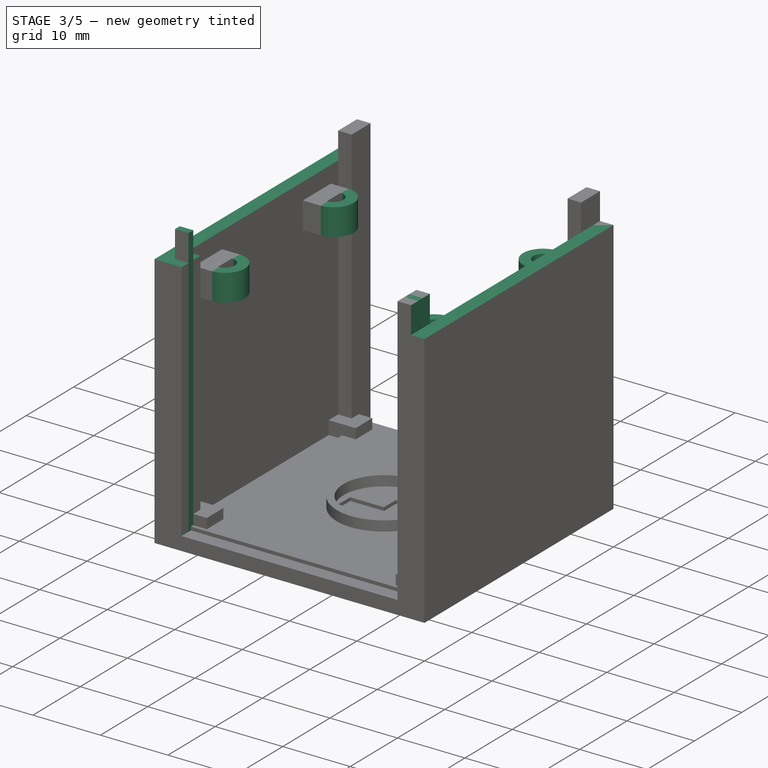
[diagram: stage 3 of 5 — iso view after this stage's code; geometry added in this stage tinted green]
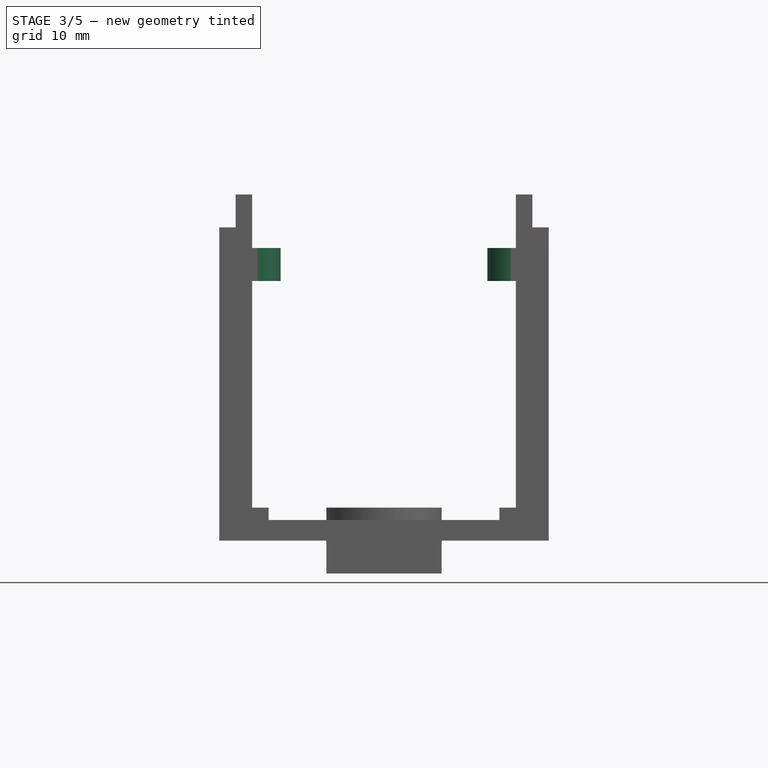
[diagram: stage 3 of 5 — front view after this stage's code; geometry added in this stage tinted green]
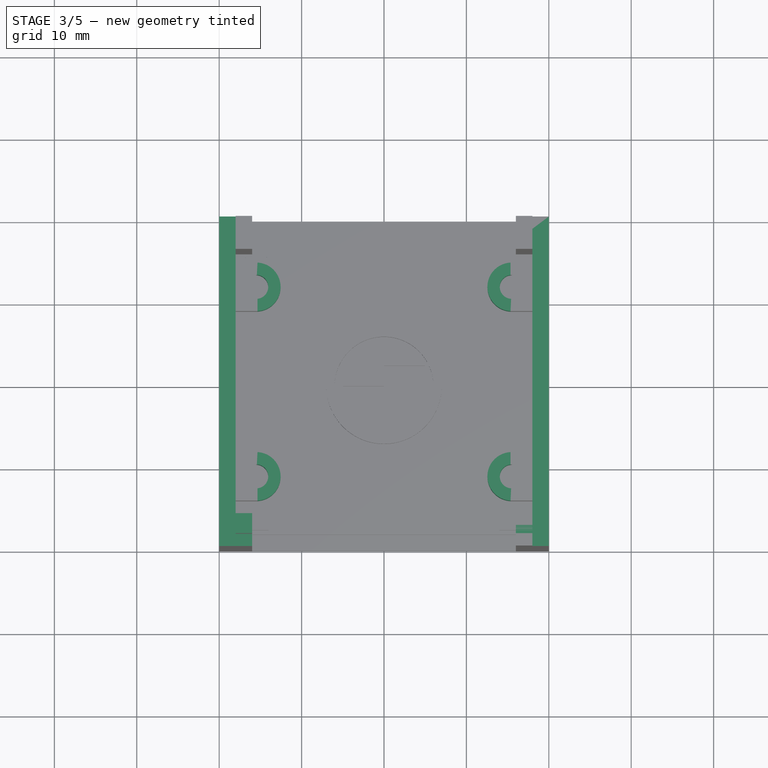
[diagram: stage 3 of 5 — top view after this stage's code; geometry added in this stage tinted green]
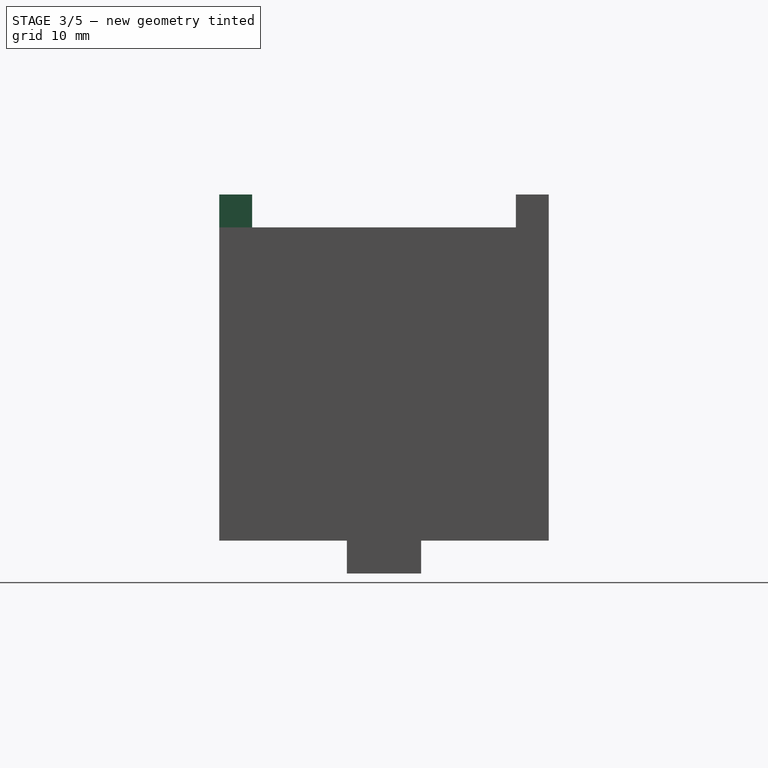
[diagram: stage 3 of 5 — right view after this stage's code; geometry added in this stage tinted green]
FEATURE [Sketcher::SketchObject] Sketch007
  ArcFitTolerance = 1e-06
  AttachmentSupport = -> [Fusion004]
  FullyConstrained = true
  MakeInternals = false
  MapMode = 5
  Placement = pos=(-16,0,0) rot=(0.57735,0.57735,0.57735;2.0944rad)
  sketch-geometry (4):
    g0: LineSegment StartX=-18.5 StartY=42 StartZ=0 EndX=-18.5 EndY=2 EndZ=0
    g1: LineSegment StartX=-18.5 StartY=2 StartZ=0 EndX=-17.5 EndY=2 EndZ=0
    g2: LineSegment StartX=-17.5 StartY=2 StartZ=0 EndX=-17.5 EndY=42 EndZ=0
    g3: LineSegment StartX=-17.5 StartY=42 StartZ=0 EndX=-18.5 EndY=42 EndZ=0
  constraints (12):
    c: Coincident(g0,g1)
    c: Coincident(g1,g2)
    c: Coincident(g2,g3)
    c: Coincident(g3,g0)
    c: Vertical(g0)
    c: Vertical(g2)
    c: Horizontal(g1)
    c: Horizontal(g3)
    c: Distance(g0,g2) = 1
    c: Distance(g1,g3) = 40
    c: Distance(g-1,g3) = 42
    c: Distance(g-2,g0) = 18.5
FEATURE [Part::Extrusion] Extrude005
  Base = -> Sketch007
  Dir = (1,0,0)
  DirMode = 2
  FaceMakerClass = Part::FaceMakerBullseye
  FaceMakerMode = 3
  LengthFwd = -2
  LengthRev = 0
  Solid = true
  Symmetric = false
FEATURE [Sketcher::SketchObject] Sketch008
  ArcFitTolerance = 1e-06
  AttachmentSupport = -> [Cut]
  FullyConstrained = true
  MakeInternals = false
  MapMode = 5
  Placement = pos=(18,0,0) rot=(0.57735,-0.57735,-0.57735;2.0944rad)
  sketch-geometry (4):
    g0: LineSegment StartX=16 StartY=42 StartZ=0 EndX=16 EndY=0 EndZ=0
    g1: LineSegment StartX=16 StartY=0 StartZ=0 EndX=20 EndY=0 EndZ=0
    g2: LineSegment StartX=20 StartY=0 StartZ=0 EndX=20 EndY=42 EndZ=0
    g3: LineSegment StartX=20 StartY=42 StartZ=0 EndX=16 EndY=42 EndZ=0
  constraints (12):
    c: Coincident(g0,g1)
    c: Coincident(g1,g2)
    c: Coincident(g2,g3)
    c: Coincident(g3,g0)
    c: Vertical(g0)
    c: Vertical(g2)
    c: Horizontal(g1)
    c: Horizontal(g3)
    c: Distance(g0,g2) = 4
    c: Distance(g1,g3) = 42
    c: Distance(g-1,g3) = 42
    c: Distance(g-2,g2) = 20
FEATURE [Part::Extrusion] Extrude006
  Base = -> Sketch008
  Dir = (-1,0,0)
  DirMode = 2
  FaceMakerClass = Part::FaceMakerBullseye
  FaceMakerMode = 3
  LengthFwd = 2
  LengthRev = 0
  Solid = true
  Symmetric = false
FEATURE [Sketcher::SketchObject] Sketch009
  ArcFitTolerance = 1e-06
  AttachmentSupport = -> [Fusion005]
  FullyConstrained = true
  MakeInternals = false
  MapMode = 5
  Placement = pos=(16,0,0) rot=(0.57735,-0.57735,-0.57735;2.0944rad)
  sketch-geometry (4):
    g0: LineSegment StartX=17.5 StartY=42 StartZ=0 EndX=17.5 EndY=2 EndZ=0
    g1: LineSegment StartX=17.5 StartY=2 StartZ=0 EndX=18.5 EndY=2 EndZ=0
    g2: LineSegment StartX=18.5 StartY=2 StartZ=0 EndX=18.5 EndY=42 EndZ=0
    g3: LineSegment StartX=18.5 StartY=42 StartZ=0 EndX=17.5 EndY=42 EndZ=0
  constraints (12):
    c: Coincident(g0,g1)
    c: Coincident(g1,g2)
    c: Coincident(g2,g3)
    c: Coincident(g3,g0)
    c: Vertical(g0)
    c: Vertical(g2)
    c: Horizontal(g1)
    c: Horizontal(g3)
    c: Distance(g0,g2) = 1
    c: Distance(g1,g3) = 40
    c: Distance(g-1,g3) = 42
    c: Distance(g-2,g2) = 18.5
FEATURE [Part::Extrusion] Extrude007
  Base = -> Sketch009
  Dir = (-1,0,0)
  DirMode = 2
  FaceMakerClass = Part::FaceMakerBullseye
  FaceMakerMode = 3
  LengthFwd = -2
  LengthRev = 0
  Solid = true
  Symmetric = false
FEATURE [Sketcher::SketchObject] Sketch010
  ArcFitTolerance = 1e-06
  AttachmentSupport = -> [Cut001]
  FullyConstrained = true
  MakeInternals = false
  MapMode = 5
  Placement = pos=(-18,0,0) rot=(0.57735,0.57735,0.57735;2.0944rad)
  sketch-geometry (4):
    g0: LineSegment StartX=16 StartY=42 StartZ=0 EndX=16 EndY=0 EndZ=0
    g1: LineSegment StartX=16 StartY=0 StartZ=0 EndX=20 EndY=0 EndZ=0
    g2: LineSegment StartX=20 StartY=0 StartZ=0 EndX=20 EndY=42 EndZ=0
    g3: LineSegment StartX=20 StartY=42 StartZ=0 EndX=16 EndY=42 EndZ=0
  constraints (12):
    c: Coincident(g0,g1)
    c: Coincident(g1,g2)
    c: Coincident(g2,g3)
    c: Coincident(g3,g0)
    c: Vertical(g0)
    c: Vertical(g2)
    c: Horizontal(g1)
    c: Horizontal(g3)
    c: Distance(g0,g2) = 4
    c: Distance(g1,g3) = 42
    c: Distance(g-1,g3) = 42
    c: Distance(g-2,g2) = 20
FEATURE [Part::Extrusion] Extrude008
  Base = -> Sketch010
  Dir = (1,0,0)
  DirMode = 2
  FaceMakerClass = Part::FaceMakerBullseye
  FaceMakerMode = 3
  LengthFwd = 2
  LengthRev = 0
  Solid = true
  Symmetric = false
FEATURE [Sketcher::SketchObject] Sketch011
  ArcFitTolerance = 1e-06
  AttachmentSupport = -> [Fusion006]
  FullyConstrained = true
  MakeInternals = false
  MapMode = 5
  Placement = pos=(-16,0,0) rot=(0.57735,0.57735,0.57735;2.0944rad)
  sketch-geometry (4):
    g0: LineSegment StartX=17.5 StartY=42 StartZ=0 EndX=17.5 EndY=2 EndZ=0
    g1: LineSegment StartX=17.5 StartY=2 StartZ=0 EndX=18.5 EndY=2 EndZ=0
    g2: LineSegment StartX=18.5 StartY=2 StartZ=0 EndX=18.5 EndY=42 EndZ=0
    g3: LineSegment StartX=18.5 StartY=42 StartZ=0 EndX=17.5 EndY=42 EndZ=0
  constraints (12):
    c: Coincident(g0,g1)
    c: Coincident(g1,g2)
    c: Coincident(g2,g3)
    c: Coincident(g3,g0)
    c: Vertical(g0)
    c: Vertical(g2)
    c: Horizontal(g1)
    c: Horizontal(g3)
    c: Distance(g0,g2) = 1
    c: Distance(g1,g3) = 40
    c: Distance(g-1,g3) = 42
    c: Distance(g-2,g2) = 18.5
FEATURE [Part::Extrusion] Extrude009
  Base = -> Sketch011
  Dir = (1,0,0)
  DirMode = 2
  FaceMakerClass = Part::FaceMakerBullseye
  FaceMakerMode = 3
  LengthFwd = -2
  LengthRev = 0
  Solid = true
  Symmetric = false
FEATURE [Sketcher::SketchObject] Sketch012
  ArcFitTolerance = 1e-06
  AttachmentSupport = -> [Cut002]
  FullyConstrained = true
  MakeInternals = false
  MapMode = 5
  Placement = pos=(18,0,0) rot=(0.57735,-0.57735,-0.57735;2.0944rad)
  sketch-geometry (4):
    g0: LineSegment StartX=-20 StartY=42 StartZ=0 EndX=-20 EndY=0 EndZ=0
    g1: LineSegment StartX=-20 StartY=0 StartZ=0 EndX=-16 EndY=0 EndZ=0
    g2: LineSegment StartX=-16 StartY=0 StartZ=0 EndX=-16 EndY=42 EndZ=0
    g3: LineSegment StartX=-16 StartY=42 StartZ=0 EndX=-20 EndY=42 EndZ=0
  constraints (12):
    c: Coincident(g0,g1)
    c: Coincident(g1,g2)
    c: Coincident(g2,g3)
    c: Coincident(g3,g0)
    c: Vertical(g0)
    c: Vertical(g2)
    c: Horizontal(g1)
    c: Horizontal(g3)
    c: Distance(g0,g2) = 4
    c: Distance(g1,g3) = 42
    c: Distance(g-1,g3) = 42
    c: Distance(g-2,g0) = 20
FEATURE [Part::Extrusion] Extrude010
  Base = -> Sketch012
  Dir = (-1,0,0)
  DirMode = 2
  FaceMakerClass = Part::FaceMakerBullseye
  FaceMakerMode = 3
  LengthFwd = 2
  LengthRev = 0
  Solid = true
  Symmetric = false
FEATURE [Sketcher::SketchObject] Sketch013
  ArcFitTolerance = 1e-06
  AttachmentSupport = -> [Fusion007]
  FullyConstrained = true
  MakeInternals = false
  MapMode = 5
  Placement = pos=(16,0,0) rot=(0.57735,-0.57735,-0.57735;2.0944rad)
  sketch-geometry (4):
    g0: LineSegment StartX=-18.5 StartY=42 StartZ=0 EndX=-18.5 EndY=2 EndZ=0
    g1: LineSegment StartX=-18.5 StartY=2 StartZ=0 EndX=-17.5 EndY=2 EndZ=0
    g2: LineSegment StartX=-17.5 StartY=2 StartZ=0 EndX=-17.5 EndY=42 EndZ=0
    g3: LineSegment StartX=-17.5 StartY=42 StartZ=0 EndX=-18.5 EndY=42 EndZ=0
  constraints (12):
    c: Coincident(g0,g1)
    c: Coincident(g1,g2)
    c: Coincident(g2,g3)
    c: Coincident(g3,g0)
    c: Vertical(g0)
    c: Vertical(g2)
    c: Horizontal(g1)
    c: Horizontal(g3)
    c: Distance(g0,g2) = 1
    c: Distance(g1,g3) = 40
    c: Distance(g-1,g3) = 42
    c: Distance(g-2,g0) = 18.5
FEATURE [Part::Extrusion] Extrude011
  Base = -> Sketch013
  Dir = (-1,0,0)
  DirMode = 2
  FaceMakerClass = Part::FaceMakerBullseye
  FaceMakerMode = 3
  LengthFwd = -2
  LengthRev = 0
  Solid = true
  Symmetric = false
FEATURE [Sketcher::SketchObject] Sketch029
  ArcFitTolerance = 1e-06
  AttachmentSupport = -> [Pocket]
  FullyConstrained = true
  MakeInternals = false
  MapMode = 45
  Placement = pos=(2.5e-15,-1.54e-14,38) rot=(0,0,1;1.5708rad)
  sketch-geometry (8):
    g0: Circle CenterX=11.5 CenterY=-15.5 CenterZ=0 NormalX=0 NormalY=0 NormalZ=1 AngleXU=0 Radius=1.45
    g1: Circle CenterX=11.5 CenterY=-15.5 CenterZ=0 NormalX=0 NormalY=0 NormalZ=1 AngleXU=0 Radius=2.95
    g2: Circle CenterX=-11.5 CenterY=-15.5 CenterZ=0 NormalX=0 NormalY=0 NormalZ=1 AngleXU=0 Radius=1.45
    g3: Circle CenterX=-11.5 CenterY=-15.5 CenterZ=0 NormalX=0 NormalY=0 NormalZ=1 AngleXU=0 Radius=2.95
    g4: Circle CenterX=11.5 CenterY=15.5 CenterZ=0 NormalX=0 NormalY=0 NormalZ=1 AngleXU=0 Radius=1.45
    g5: Circle CenterX=11.5 CenterY=15.5 CenterZ=0 NormalX=0 NormalY=0 NormalZ=1 AngleXU=0 Radius=2.95
    g6: Circle CenterX=-11.5 CenterY=15.5 CenterZ=0 NormalX=0 NormalY=0 NormalZ=1 AngleXU=0 Radius=1.45
    g7: Circle CenterX=-11.5 CenterY=15.5 CenterZ=0 NormalX=0 NormalY=0 NormalZ=1 AngleXU=0 Radius=2.95
  constraints (20):
    c: Diameter(g0) = 2.9
    c: Diameter(g1) = 5.9
    c: Coincident(g1,g0)
    c: Distance(g0,g-1) = 15.5
    c: Distance(g0,g-2) = 11.5
    c: Diameter(g2) = 2.9
    c: Diameter(g3) = 5.9
    c: Coincident(g3,g2)
    c: Distance(g2,g-1) = 15.5
    c: Distance(g2,g-2) = 11.5
    c: Diameter(g4) = 2.9
    c: Diameter(g5) = 5.9
    c: Coincident(g5,g4)
    c: Diameter(g6) = 2.9
    c: Diameter(g7) = 5.9
    c: Coincident(g7,g6)
    c: Distance(g6,g-2) = 11.5
    c: Distance(g4,g-2) = 11.5
    c: Distance(g4,g-1) = 15.5
    c: Distance(g6,g-1) = 15.5
FEATURE [Part::Extrusion] Extrude024
  Base = -> Sketch029
  Dir = (0,0,1)
  DirMode = 2
  FaceMakerClass = Part::FaceMakerBullseye
  FaceMakerMode = 3
  LengthFwd = -4
  LengthRev = 0
  Placement = pos=(0,0,-2.5) rot=(0,0,1;0rad)
  Solid = true
  Symmetric = false
FEATURE [PartDesign::Chamfer] Chamfer
  Angle = 45
  Base = -> Pocket004 [?Edge12]
  BaseFeature = -> Pocket004
  ChamferType = 0
  FlipDirection = false
  Refine = true
  Size = 1.3
  Size2 = 1
  SupportTransform = false
  Suppressed = false
  UseAllEdges = false
FEATURE [PartDesign::Pocket] Pocket005
  BaseFeature = -> Chamfer
  Direction = (0,0,1)
  Length = 5
  Length2 = 5
  Profile = -> Sketch030
  ReferenceAxis = -> Sketch030 [N_Axis]
  Refine = true
  Suppressed = false
  Type = 0
FEATURE [PartDesign::Chamfer] Chamfer001
  Angle = 45
  Base = -> Pocket005 [Edge7,Edge8,Edge6]
  BaseFeature = -> Pocket005
  ChamferType = 0
  FlipDirection = false
  Refine = true
  Size = 1.3
  Size2 = 1
  SupportTransform = false
  Suppressed = false
  UseAllEdges = false
FEATURE [PartDesign::Fillet] Fillet001
  Base = -> Chamfer001 [Edge16,Edge13,Edge18,Edge14,Edge5,Edge3,Edge4,Edge6]
  BaseFeature = -> Chamfer001
  Radius = 1
  Refine = true
  SupportTransform = false
  Suppressed = false
  UseAllEdges = false
FEATURE [Sketcher::SketchObject] Sketch031
  ArcFitTolerance = 1e-06
  AttachmentSupport = -> [XY_Plane006]
  FullyConstrained = true
  MakeInternals = false
  MapMode = 5
  sketch-geometry (4):
    g0: LineSegment StartX=-20 StartY=20 StartZ=0 EndX=-20 EndY=-20 EndZ=0
    g1: LineSegment StartX=-20 StartY=-20 StartZ=0 EndX=20 EndY=-20 EndZ=0
    g2: LineSegment StartX=20 StartY=-20 StartZ=0 EndX=20 EndY=20 EndZ=0
    g3: LineSegment StartX=20 StartY=20 StartZ=0 EndX=-20 EndY=20 EndZ=0
  constraints (12):
    c: Coincident(g0,g1)
    c: Coincident(g1,g2)
    c: Coincident(g2,g3)
    c: Coincident(g3,g0)
    c: Vertical(g0)
    c: Vertical(g2)
    c: Horizontal(g1)
    c: Horizontal(g3)
    c: Distance(g0,g2) = 40
    c: Distance(g1,g3) = 40
    c: Distance(g2,g-2) = 20
    c: Distance(g-1,g3) = 20
FEATURE [Part::Extrusion] Extrude025
  Base = -> Sketch031
  Dir = (0,0,1)
  DirMode = 2
  FaceMakerClass = Part::FaceMakerBullseye
  FaceMakerMode = 3
  LengthFwd = 2
  LengthRev = 0
  Solid = true
  Symmetric = false
FEATURE [Part::Cut] Cut006
  Base = -> Fusion021
  Refine = true
  Tool = -> Extrude034
FEATURE [Part::MultiFuse] Fusion022
  Refine = true
  Shapes = -> [Cut006,Extrude035]
FEATURE [Sketcher::SketchObject] Sketch043
  ArcFitTolerance = 1e-06
  AttachmentSupport = -> [Fusion022]
  FullyConstrained = true
  MakeInternals = false
  MapMode = 5
  Placement = pos=(16,0,0) rot=(0.57735,-0.57735,-0.57735;2.0944rad)
  sketch-geometry (4):
    g0: LineSegment StartX=-18.5 StartY=42 StartZ=0 EndX=-18.5 EndY=2 EndZ=0
    g1: LineSegment StartX=-18.5 StartY=2 StartZ=0 EndX=-17.5 EndY=2 EndZ=0
    g2: LineSegment StartX=-17.5 StartY=2 StartZ=0 EndX=-17.5 EndY=42 EndZ=0
    g3: LineSegment StartX=-17.5 StartY=42 StartZ=0 EndX=-18.5 EndY=42 EndZ=0
  constraints (12):
    c: Coincident(g0,g1)
    c: Coincident(g1,g2)
    c: Coincident(g2,g3)
    c: Coincident(g3,g0)
    c: Vertical(g0)
    c: Vertical(g2)
    c: Horizontal(g1)
    c: Horizontal(g3)
    c: Distance(g0,g2) = 1
    c: Distance(g1,g3) = 40
    c: Distance(g-1,g3) = 42
    c: Distance(g-2,g0) = 18.5
FEATURE [Part::Extrusion] Extrude036
  Base = -> Sketch043
  Dir = (-1,0,0)
  DirMode = 2
  FaceMakerClass = Part::FaceMakerBullseye
  FaceMakerMode = 3
  LengthFwd = -2
  LengthRev = 0
  Solid = true
  Symmetric = false
FEATURE [Part::Cut] Cut007
  Base = -> Fusion022
  Placement = pos=(60,0,0) rot=(0,0,1;0rad)
  Refine = true
  Tool = -> Extrude036
FEATURE [PartDesign::FeatureBase] BaseFeature005
  BaseFeature = -> Cut007
  Suppressed = false
FEATURE [PartDesign::Pocket] Pocket006
  BaseFeature = -> BaseFeature005
  Direction = (1.3e-15,0,-1)
  Length = 4
  Length2 = 5
  Profile = -> BaseFeature005 [Face10,Face12]
  Refine = true
  Suppressed = false
  Type = 0
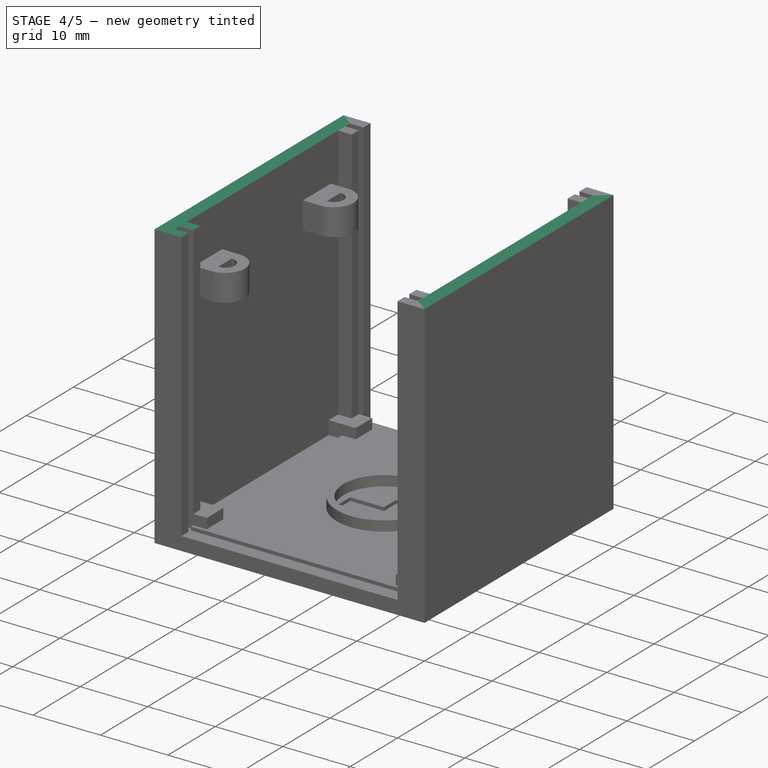
[diagram: stage 4 of 5 — iso view after this stage's code; geometry added in this stage tinted green]
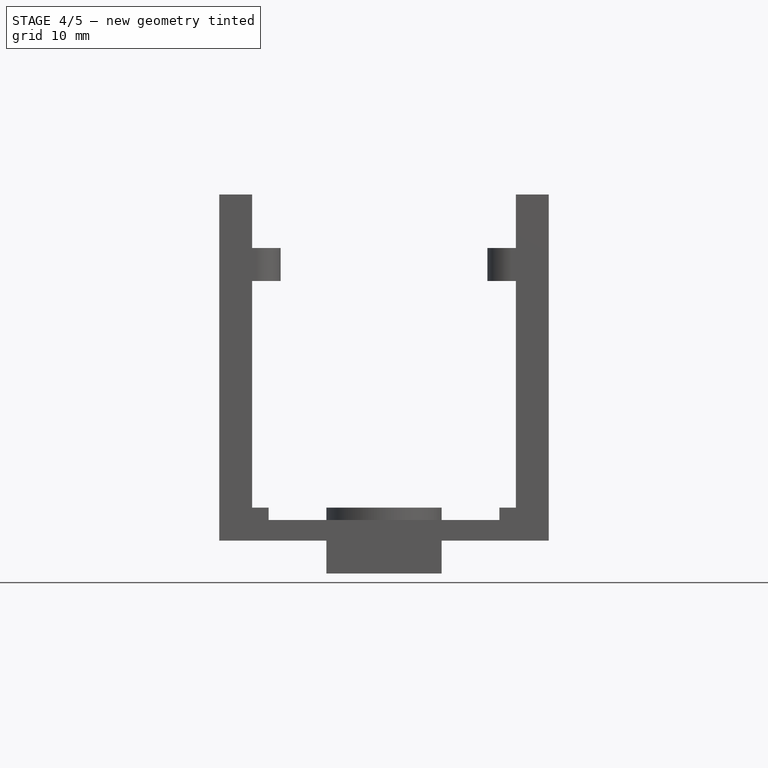
[diagram: stage 4 of 5 — front view after this stage's code; geometry added in this stage tinted green]
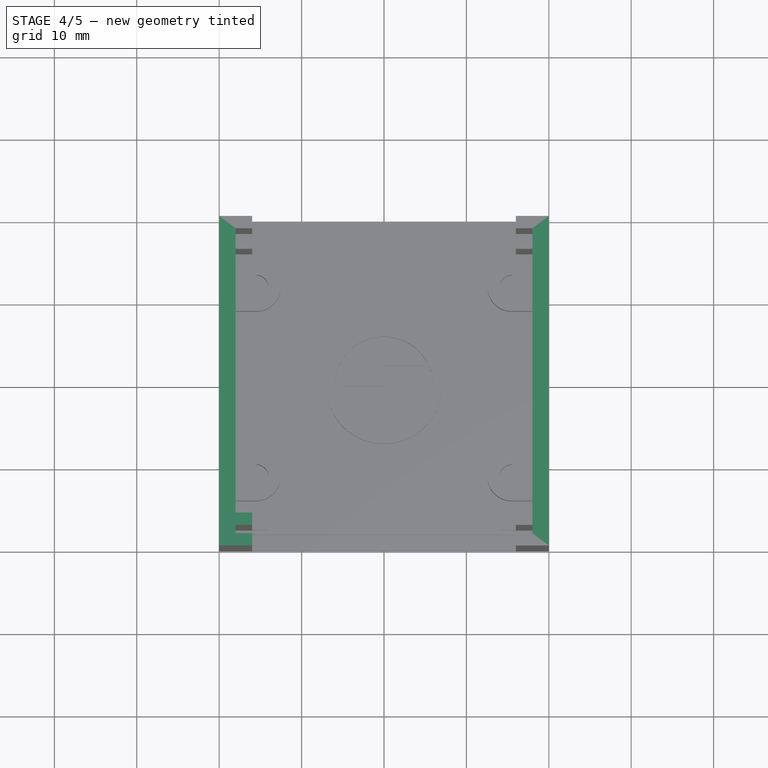
[diagram: stage 4 of 5 — top view after this stage's code; geometry added in this stage tinted green]
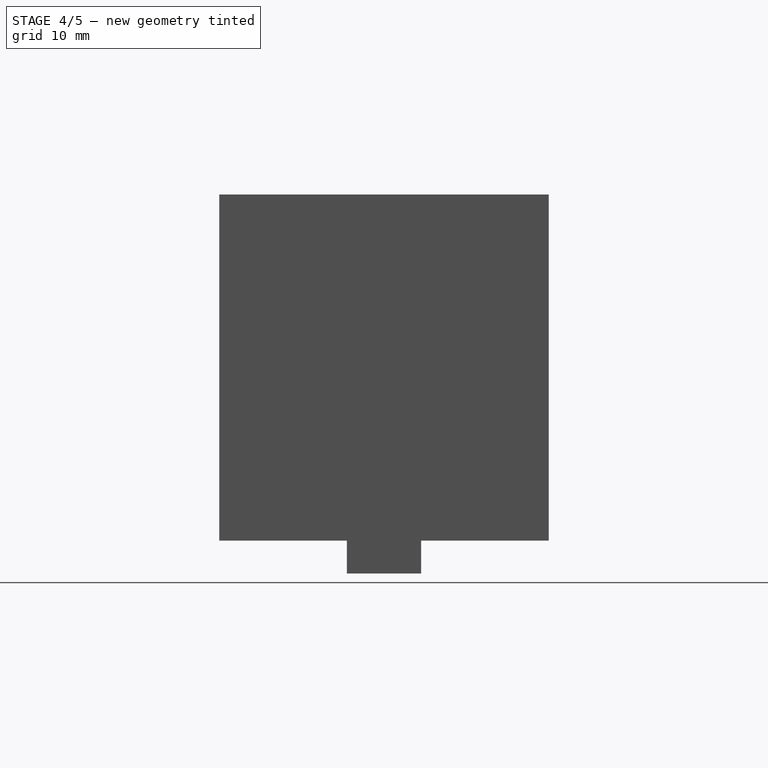
[diagram: stage 4 of 5 — right view after this stage's code; geometry added in this stage tinted green]
FEATURE [Sketcher::SketchObject] Sketch002
  ArcFitTolerance = 1e-06
  AttachmentSupport = -> [Extrude]
  FullyConstrained = true
  MakeInternals = false
  MapMode = 5
  Placement = pos=(0,0,2) rot=(0,0,1;0rad)
  sketch-geometry (2):
    g0: Circle CenterX=0 CenterY=0 CenterZ=0 NormalX=0 NormalY=0 NormalZ=1 AngleXU=0 Radius=7
    g1: Circle CenterX=0 CenterY=0 CenterZ=0 NormalX=0 NormalY=0 NormalZ=1 AngleXU=0 Radius=6
  constraints (4):
    c: Diameter(g0) = 14
    c: Coincident(g0,g-1)
    c: Diameter(g1) = 12
    c: Coincident(g1,g0)
FEATURE [Part::Extrusion] Extrude001
  Base = -> Sketch002
  Dir = (0,0,1)
  DirMode = 2
  FaceMakerClass = Part::FaceMakerBullseye
  FaceMakerMode = 3
  LengthFwd = 2
  LengthRev = 0
  Solid = true
  Symmetric = false
FEATURE [Sketcher::SketchObject] Sketch003
  ArcFitTolerance = 1e-06
  AttachmentSupport = -> [Extrude]
  FullyConstrained = true
  MakeInternals = false
  MapMode = 5
  Placement = pos=(0,0,2) rot=(0,0,1;0rad)
  sketch-geometry (1):
    g0: Circle CenterX=0 CenterY=0 CenterZ=0 NormalX=0 NormalY=0 NormalZ=1 AngleXU=0 Radius=1.75
  constraints (2):
    c: Diameter(g0) = 3.5
    c: Coincident(g0,g-1)
FEATURE [PartDesign::Hole] Hole
  CustomThreadClearance = 0
  Depth = 25
  DepthType = 0
  Diameter = 3.5
  DrillForDepth = false
  DrillPoint = 1
  DrillPointAngle = 118
  HoleCutCountersinkAngle = 90
  HoleCutCustomValues = false
  HoleCutDepth = 0
  HoleCutDiameter = 6.1
  HoleCutType = 0
  ModelThread = false
  Profile = -> Sketch003
  Refine = true
  Suppressed = false
  Tapered = false
  TaperedAngle = 90
  ThreadClass = 0
  ThreadDepth = 25
  ThreadDepthType = 0
  ThreadDirection = 0
  ThreadFit = 0
  ThreadSize = 0
  ThreadType = 0
  Threaded = false
  UseCustomThreadClearance = false
FEATURE [PartDesign::Body] Body
  AllowCompound = false
  Group = -> [Sketch003,Hole]
  Origin = -> Origin
  Tip = -> Hole
FEATURE [Sketcher::SketchObject] Sketch004
  ArcFitTolerance = 1e-06
  FullyConstrained = true
  MakeInternals = false
  sketch-geometry (4):
    g0: LineSegment StartX=-20 StartY=20 StartZ=0 EndX=-20 EndY=-20 EndZ=0
    g1: LineSegment StartX=-20 StartY=-20 StartZ=0 EndX=-18 EndY=-20 EndZ=0
    g2: LineSegment StartX=-18 StartY=-20 StartZ=0 EndX=-18 EndY=20 EndZ=0
    g3: LineSegment StartX=-18 StartY=20 StartZ=0 EndX=-20 EndY=20 EndZ=0
  constraints (12):
    c: Coincident(g0,g1)
    c: Coincident(g1,g2)
    c: Coincident(g2,g3)
    c: Coincident(g3,g0)
    c: Vertical(g0)
    c: Vertical(g2)
    c: Horizontal(g1)
    c: Horizontal(g3)
    c: Distance(g0,g2) = 2
    c: Distance(g1,g3) = 40
    c: Distance(g-2,g0) = 20
    c: Distance(g-1,g3) = 20
FEATURE [Part::Extrusion] Extrude002
  Base = -> Sketch004
  Dir = (0,0,1)
  DirMode = 2
  FaceMakerClass = Part::FaceMakerBullseye
  FaceMakerMode = 3
  LengthFwd = 42
  LengthRev = 0
  Solid = true
  Symmetric = false
FEATURE [Part::Fuse] Fusion
  Base = -> Body
  Refine = true
  Tool = -> Extrude001
FEATURE [Part::Fuse] Fusion001
  Base = -> Body
  Refine = true
  Tool = -> Extrude002
FEATURE [Part::Fuse] Fusion002
  Base = -> Fusion
  Refine = true
  Tool = -> Fusion001
FEATURE [Sketcher::SketchObject] Sketch005
  ArcFitTolerance = 1e-06
  FullyConstrained = true
  MakeInternals = false
  sketch-geometry (4):
    g0: LineSegment StartX=20 StartY=20 StartZ=0 EndX=18 EndY=20 EndZ=0
    g1: LineSegment StartX=18 StartY=20 StartZ=0 EndX=18 EndY=-20 EndZ=0
    g2: LineSegment StartX=18 StartY=-20 StartZ=0 EndX=20 EndY=-20 EndZ=0
    g3: LineSegment StartX=20 StartY=-20 StartZ=0 EndX=20 EndY=20 EndZ=0
  constraints (12):
    c: Coincident(g0,g1)
    c: Coincident(g1,g2)
    c: Coincident(g2,g3)
    c: Coincident(g3,g0)
    c: Horizontal(g0)
    c: Horizontal(g2)
    c: Vertical(g1)
    c: Vertical(g3)
    c: Distance(g1,g3) = 2
    c: Distance(g0,g2) = 40
    c: Distance(g-2,g3) = 20
    c: Distance(g-1,g0) = 20
FEATURE [Part::Extrusion] Extrude003
  Base = -> Sketch005
  Dir = (0,0,1)
  DirMode = 2
  FaceMakerClass = Part::FaceMakerBullseye
  FaceMakerMode = 3
  LengthFwd = 42
  LengthRev = 0
  Solid = true
  Symmetric = false
FEATURE [Part::Fuse] Fusion003
  Base = -> Fusion002
  Refine = true
  Tool = -> Extrude003
FEATURE [Sketcher::SketchObject] Sketch006
  ArcFitTolerance = 1e-06
  AttachmentSupport = -> [Fusion003]
  FullyConstrained = true
  MakeInternals = false
  MapMode = 5
  Placement = pos=(-18,0,0) rot=(0.57735,0.57735,0.57735;2.0944rad)
  sketch-geometry (4):
    g0: LineSegment StartX=-20 StartY=42 StartZ=0 EndX=-20 EndY=1.42e-14 EndZ=0
    g1: LineSegment StartX=-20 StartY=1.42e-14 StartZ=0 EndX=-16 EndY=1.42e-14 EndZ=0
    g2: LineSegment StartX=-16 StartY=1.42e-14 StartZ=0 EndX=-16 EndY=42 EndZ=0
    g3: LineSegment StartX=-16 StartY=42 StartZ=0 EndX=-20 EndY=42 EndZ=0
  constraints (12):
    c: Coincident(g0,g1)
    c: Coincident(g1,g2)
    c: Coincident(g2,g3)
    c: Coincident(g3,g0)
    c: Vertical(g0)
    c: Vertical(g2)
    c: Horizontal(g1)
    c: Horizontal(g3)
    c: Distance(g0,g2) = 4
    c: Distance(g1,g3) = 42
    c: Distance(g-1,g3) = 42
    c: Distance(g-2,g0) = 20
FEATURE [Part::Extrusion] Extrude004
  Base = -> Sketch006
  Dir = (1,0,0)
  DirMode = 2
  FaceMakerClass = Part::FaceMakerBullseye
  FaceMakerMode = 3
  LengthFwd = 2
  LengthRev = 0
  Solid = true
  Symmetric = false
FEATURE [Part::Fuse] Fusion004
  Base = -> Fusion003
  Refine = true
  Tool = -> Extrude004
FEATURE [Part::Cut] Cut
  Base = -> Fusion004
  Refine = true
  Tool = -> Extrude005
FEATURE [Part::MultiFuse] Fusion005
  Refine = true
  Shapes = -> [Cut,Extrude006]
FEATURE [Part::Cut] Cut001
  Base = -> Fusion005
  Refine = true
  Tool = -> Extrude007
FEATURE [Part::MultiFuse] Fusion006
  Refine = true
  Shapes = -> [Cut001,Extrude008]
FEATURE [Part::Cut] Cut002
  Base = -> Fusion006
  Refine = true
  Tool = -> Extrude009
FEATURE [Part::MultiFuse] Fusion007
  Refine = true
  Shapes = -> [Cut002,Extrude010]
FEATURE [Part::Cut] Cut003
  Base = -> Fusion007
  Placement = pos=(60,0,0) rot=(0,0,1;0rad)
  Refine = true
  Tool = -> Extrude011
FEATURE [PartDesign::FeatureBase] BaseFeature
  BaseFeature = -> Cut003
  Suppressed = false
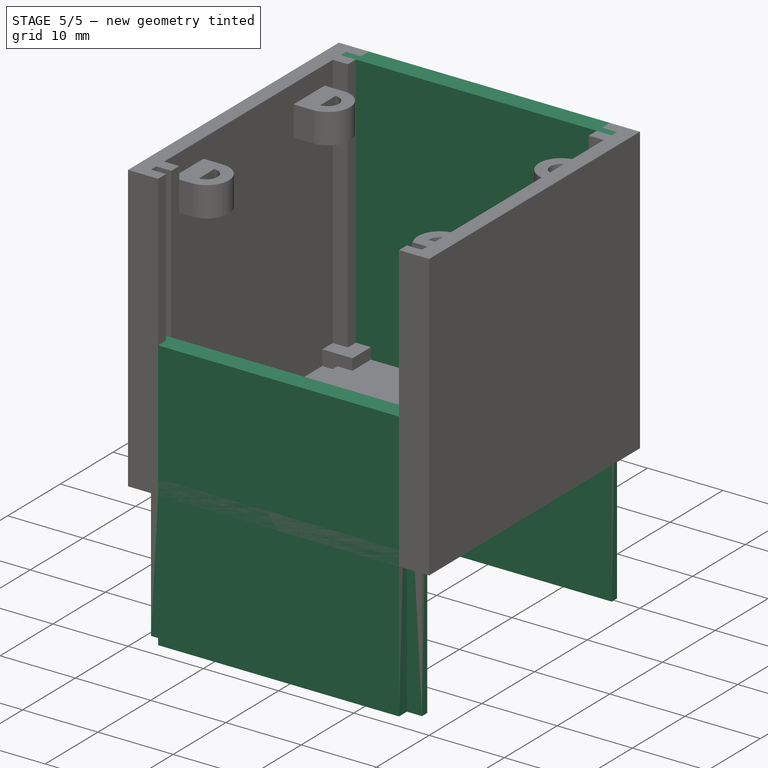
[diagram: stage 5 of 5 — iso view after this stage's code; geometry added in this stage tinted green]
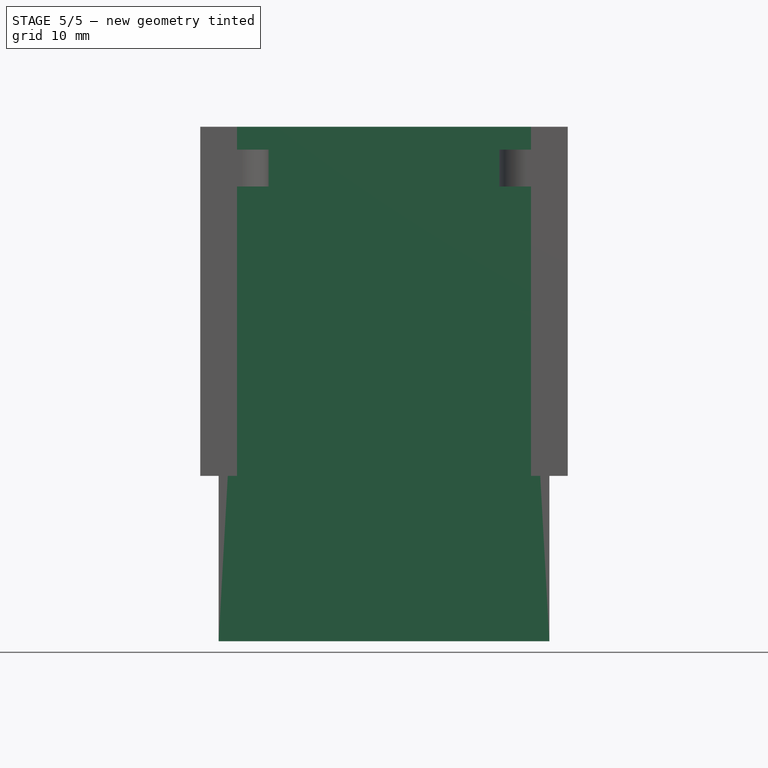
[diagram: stage 5 of 5 — front view after this stage's code; geometry added in this stage tinted green]
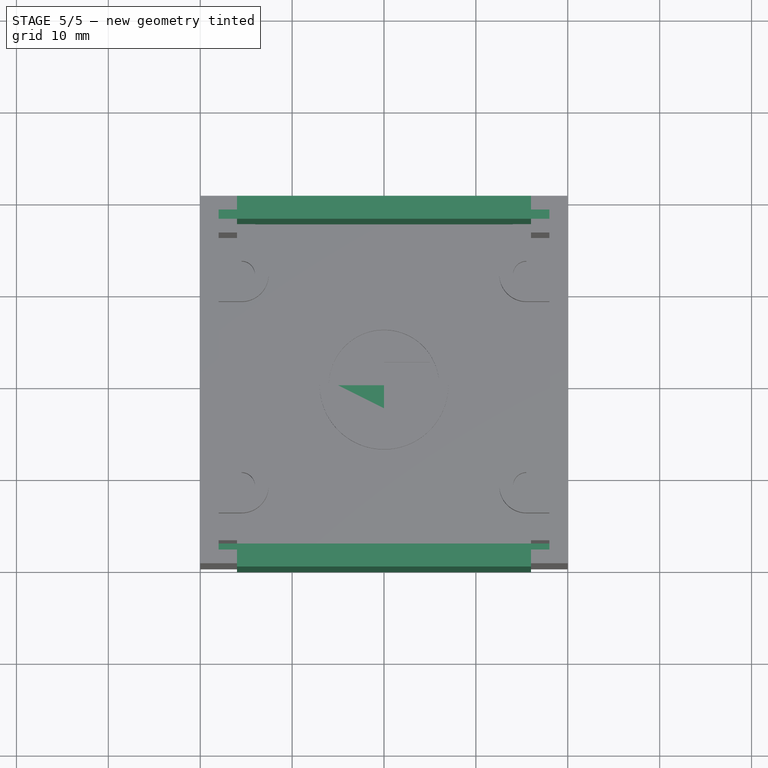
[diagram: stage 5 of 5 — top view after this stage's code; geometry added in this stage tinted green]
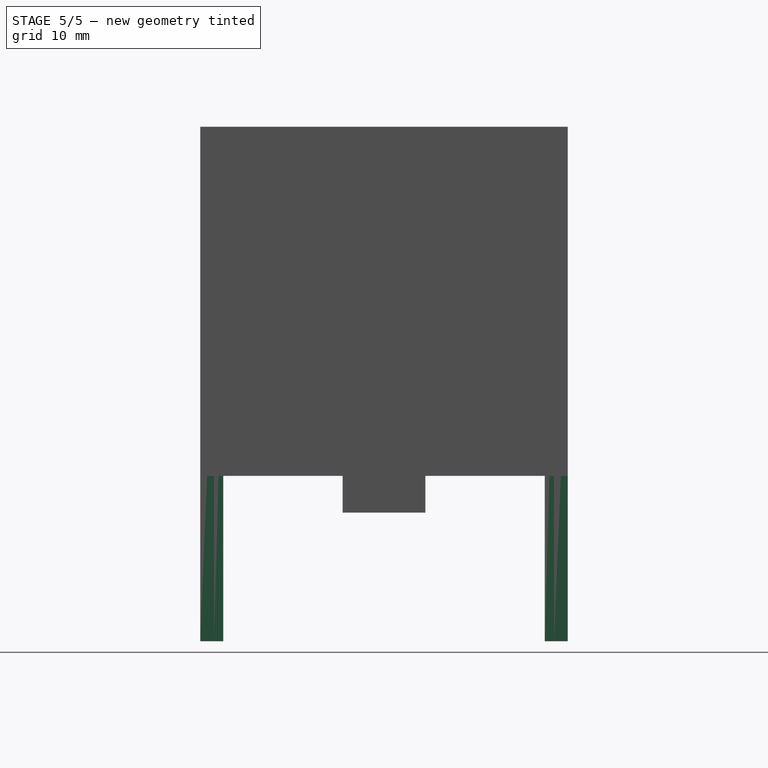
[diagram: stage 5 of 5 — right view after this stage's code; geometry added in this stage tinted green]
FEATURE [Sketcher::SketchObject] Sketch
  ArcFitTolerance = 1e-06
  AttachmentSupport = -> [XY_Plane]
  FullyConstrained = true
  MakeInternals = false
  MapMode = 5
  sketch-geometry (4):
    g0: LineSegment StartX=-20 StartY=20 StartZ=0 EndX=-20 EndY=-20 EndZ=0
    g1: LineSegment StartX=-20 StartY=-20 StartZ=0 EndX=20 EndY=-20 EndZ=0
    g2: LineSegment StartX=20 StartY=-20 StartZ=0 EndX=20 EndY=20 EndZ=0
    g3: LineSegment StartX=20 StartY=20 StartZ=0 EndX=-20 EndY=20 EndZ=0
  constraints (12):
    c: Coincident(g0,g1)
    c: Coincident(g1,g2)
    c: Coincident(g2,g3)
    c: Coincident(g3,g0)
    c: Vertical(g0)
    c: Vertical(g2)
    c: Horizontal(g1)
    c: Horizontal(g3)
    c: Distance(g0,g2) = 40
    c: Distance(g1,g3) = 40
    c: Distance(g2,g-2) = 20
    c: Distance(g-1,g3) = 20
FEATURE [Part::Extrusion] Extrude
  Base = -> Sketch
  Dir = (0,0,1)
  DirMode = 2
  FaceMakerClass = Part::FaceMakerBullseye
  FaceMakerMode = 3
  LengthFwd = 2
  LengthRev = 0
  Solid = true
  Symmetric = false
FEATURE [Sketcher::SketchObject] Sketch014
  ArcFitTolerance = 1e-06
  FullyConstrained = true
  MakeInternals = false
  sketch-geometry (4):
    g0: LineSegment StartX=-18 StartY=18 StartZ=0 EndX=-18 EndY=-18 EndZ=0
    g1: LineSegment StartX=-18 StartY=-18 StartZ=0 EndX=18 EndY=-18 EndZ=0
    g2: LineSegment StartX=18 StartY=-18 StartZ=0 EndX=18 EndY=18 EndZ=0
    g3: LineSegment StartX=18 StartY=18 StartZ=0 EndX=-18 EndY=18 EndZ=0
  constraints (12):
    c: Coincident(g0,g1)
    c: Coincident(g1,g2)
    c: Coincident(g2,g3)
    c: Coincident(g3,g0)
    c: Vertical(g0)
    c: Vertical(g2)
    c: Horizontal(g1)
    c: Horizontal(g3)
    c: Distance(g0,g2) = 36
    c: Distance(g1,g3) = 36
    c: Distance(g-1,g3) = 18
    c: Distance(g-2,g2) = 18
FEATURE [Part::Extrusion] Extrude012
  Base = -> Sketch014
  Dir = (0,0,1)
  DirMode = 2
  FaceMakerClass = Part::FaceMakerBullseye
  FaceMakerMode = 3
  LengthFwd = 1
  LengthRev = 0
  Solid = true
  Symmetric = false
FEATURE [Sketcher::SketchObject] Sketch015
  ArcFitTolerance = 1e-06
  AttachmentSupport = -> [Extrude012]
  FullyConstrained = true
  MakeInternals = false
  MapMode = 5
  Placement = pos=(0,0,1) rot=(0,0,1;0rad)
  sketch-geometry (4):
    g0: LineSegment StartX=-16 StartY=18 StartZ=0 EndX=-16 EndY=-18 EndZ=0
    g1: LineSegment StartX=-16 StartY=-18 StartZ=0 EndX=16 EndY=-18 EndZ=0
    g2: LineSegment StartX=16 StartY=-18 StartZ=0 EndX=16 EndY=18 EndZ=0
    g3: LineSegment StartX=16 StartY=18 StartZ=0 EndX=-16 EndY=18 EndZ=0
  constraints (12):
    c: Coincident(g0,g1)
    c: Coincident(g1,g2)
    c: Coincident(g2,g3)
    c: Coincident(g3,g0)
    c: Vertical(g0)
    c: Vertical(g2)
    c: Horizontal(g1)
    c: Horizontal(g3)
    c: Distance(g0,g2) = 32
    c: Distance(g1,g3) = 36
    c: Distance(g-1,g3) = 18
    c: Distance(g-2,g0) = 16
FEATURE [Part::Extrusion] Extrude013
  Base = -> Sketch015
  Dir = (0,0,1)
  DirMode = 2
  FaceMakerClass = Part::FaceMakerBullseye
  FaceMakerMode = 3
  LengthFwd = 1.5
  LengthRev = 0
  Solid = true
  Symmetric = false
FEATURE [Part::MultiFuse] Fusion008
  Placement = pos=(0,17.5,0) rot=(1,0,0;-1.5708rad)
  Refine = true
  Shapes = -> [Extrude012,Extrude013]
FEATURE [Sketcher::SketchObject] Sketch016
  ArcFitTolerance = 1e-06
  FullyConstrained = true
  MakeInternals = false
  sketch-geometry (4):
    g0: LineSegment StartX=-18 StartY=18 StartZ=0 EndX=-18 EndY=-18 EndZ=0
    g1: LineSegment StartX=-18 StartY=-18 StartZ=0 EndX=18 EndY=-18 EndZ=0
    g2: LineSegment StartX=18 StartY=-18 StartZ=0 EndX=18 EndY=18 EndZ=0
    g3: LineSegment StartX=18 StartY=18 StartZ=0 EndX=-18 EndY=18 EndZ=0
  constraints (12):
    c: Coincident(g0,g1)
    c: Coincident(g1,g2)
    c: Coincident(g2,g3)
    c: Coincident(g3,g0)
    c: Vertical(g0)
    c: Vertical(g2)
    c: Horizontal(g1)
    c: Horizontal(g3)
    c: Distance(g0,g2) = 36
    c: Distance(g1,g3) = 36
    c: Distance(g-1,g3) = 18
    c: Distance(g-2,g2) = 18
FEATURE [Part::Extrusion] Extrude014
  Base = -> Sketch016
  Dir = (0,0,1)
  DirMode = 2
  FaceMakerClass = Part::FaceMakerBullseye
  FaceMakerMode = 3
  LengthFwd = 1
  LengthRev = 0
  Solid = true
  Symmetric = false
FEATURE [Sketcher::SketchObject] Sketch017
  ArcFitTolerance = 1e-06
  AttachmentSupport = -> [Extrude014]
  FullyConstrained = true
  MakeInternals = false
  MapMode = 5
  Placement = pos=(0,0,1) rot=(0,0,1;0rad)
  sketch-geometry (4):
    g0: LineSegment StartX=-16 StartY=18 StartZ=0 EndX=-16 EndY=-18 EndZ=0
    g1: LineSegment StartX=-16 StartY=-18 StartZ=0 EndX=16 EndY=-18 EndZ=0
    g2: LineSegment StartX=16 StartY=-18 StartZ=0 EndX=16 EndY=18 EndZ=0
    g3: LineSegment StartX=16 StartY=18 StartZ=0 EndX=-16 EndY=18 EndZ=0
  constraints (12):
    c: Coincident(g0,g1)
    c: Coincident(g1,g2)
    c: Coincident(g2,g3)
    c: Coincident(g3,g0)
    c: Vertical(g0)
    c: Vertical(g2)
    c: Horizontal(g1)
    c: Horizontal(g3)
    c: Distance(g0,g2) = 32
    c: Distance(g1,g3) = 36
    c: Distance(g-1,g3) = 18
    c: Distance(g-2,g0) = 16
FEATURE [Part::Extrusion] Extrude015
  Base = -> Sketch017
  Dir = (0,0,1)
  DirMode = 2
  FaceMakerClass = Part::FaceMakerBullseye
  FaceMakerMode = 3
  LengthFwd = 1.5
  LengthRev = 0
  Solid = true
  Symmetric = false
FEATURE [Part::MultiFuse] Fusion009
  Placement = pos=(0,-17.5,0) rot=(1,0,0;1.5708rad)
  Refine = true
  Shapes = -> [Extrude014,Extrude015]
FEATURE [PartDesign::Pocket] Pocket
  BaseFeature = -> BaseFeature
  Direction = (1.2e-15,0,-1)
  Length = 4
  Length2 = 5
  Profile = -> BaseFeature [Face10,Face12]
  Refine = true
  Suppressed = false
  Type = 0
FEATURE [PartDesign::Body] Body001
  AllowCompound = false
  BaseFeature = -> Cut003
  Group = -> [BaseFeature,Pocket]
  Origin = -> Origin001
  Tip = -> Pocket
FEATURE [Sketcher::SketchObject] Sketch018
  ArcFitTolerance = 1e-06
  FullyConstrained = true
  MakeInternals = false
  sketch-geometry (4):
    g0: LineSegment StartX=-18 StartY=18 StartZ=0 EndX=-18 EndY=-18 EndZ=0
    g1: LineSegment StartX=-18 StartY=-18 StartZ=0 EndX=18 EndY=-18 EndZ=0
    g2: LineSegment StartX=18 StartY=-18 StartZ=0 EndX=18 EndY=18 EndZ=0
    g3: LineSegment StartX=18 StartY=18 StartZ=0 EndX=-18 EndY=18 EndZ=0
  constraints (12):
    c: Coincident(g0,g1)
    c: Coincident(g1,g2)
    c: Coincident(g2,g3)
    c: Coincident(g3,g0)
    c: Vertical(g0)
    c: Vertical(g2)
    c: Horizontal(g1)
    c: Horizontal(g3)
    c: DistanceX(g3,g3) = 36
    c: DistanceY(g0,g0) = 36
    c: Distance(g-2,g0) = 18
    c: Distance(g-1,g1) = 18
FEATURE [Part::Extrusion] Extrude016
  Base = -> Sketch018
  Dir = (0,0,1)
  DirMode = 2
  FaceMakerClass = Part::FaceMakerBullseye
  FaceMakerMode = 3
  LengthFwd = 1
  LengthRev = 0
  Solid = true
  Symmetric = false
FEATURE [Sketcher::SketchObject] Sketch019
  ArcFitTolerance = 1e-06
  AttachmentSupport = -> [Extrude016]
  FullyConstrained = true
  MakeInternals = false
  MapMode = 5
  Placement = pos=(0,0,1) rot=(0,0,1;0rad)
  sketch-geometry (4):
    g0: LineSegment StartX=-16 StartY=18 StartZ=0 EndX=-16 EndY=-18 EndZ=0
    g1: LineSegment StartX=-16 StartY=-18 StartZ=0 EndX=16 EndY=-18 EndZ=0
    g2: LineSegment StartX=16 StartY=-18 StartZ=0 EndX=16 EndY=18 EndZ=0
    g3: LineSegment StartX=16 StartY=18 StartZ=0 EndX=-16 EndY=18 EndZ=0
  constraints (12):
    c: Coincident(g0,g1)
    c: Coincident(g1,g2)
    c: Coincident(g2,g3)
    c: Coincident(g3,g0)
    c: Vertical(g0)
    c: Vertical(g2)
    c: Horizontal(g1)
    c: Horizontal(g3)
    c: DistanceX(g3,g3) = 32
    c: Distance(g3,g1) = 36
    c: Distance(g-1,g3) = 18
    c: Distance(g-2,g0) = 16
FEATURE [Part::Extrusion] Extrude017
  Base = -> Sketch019
  Dir = (0,0,1)
  DirMode = 2
  FaceMakerClass = Part::FaceMakerBullseye
  FaceMakerMode = 3
  LengthFwd = 1.5
  LengthRev = 0
  Solid = true
  Symmetric = false
FEATURE [Part::MultiFuse] Fusion010
  Placement = pos=(0,17.5,20) rot=(1,0,0;-1.5708rad)
  Refine = true
  Shapes = -> [Extrude016,Extrude017]
FEATURE [Sketcher::SketchObject] Sketch022
  ArcFitTolerance = 1e-06
  AttachmentSupport = -> [Fusion010]
  FullyConstrained = true
  MakeInternals = false
  MapMode = 5
  Placement = pos=(0,20,20) rot=(-1,0,0;1.5708rad)
  sketch-geometry (11):
    g0: LineSegment StartX=5 StartY=-2.5 StartZ=0 EndX=5 EndY=2.5 EndZ=0
    g1: LineSegment StartX=5 StartY=2.5 StartZ=0 EndX=-5 EndY=2.5 EndZ=0
    g2: GeomPoint [constr] X=0 Y=0 Z=0
    g3: GeomPoint X=0 Y=-2.5 Z=0
    g4: GeomPoint X=-5 Y=0 Z=0
    g5: LineSegment StartX=0 StartY=0 StartZ=0 EndX=0 EndY=-2.5 EndZ=0
    g6: LineSegment StartX=0 StartY=-2.5 StartZ=0 EndX=5 EndY=-2.5 EndZ=0
    g7: LineSegment StartX=5 StartY=-2.5 StartZ=0 EndX=5 EndY=2.5 EndZ=0
    g8: LineSegment StartX=5 StartY=2.5 StartZ=0 EndX=-5 EndY=2.5 EndZ=0
    g9: LineSegment StartX=-5 StartY=2.5 StartZ=0 EndX=-5 EndY=0 EndZ=0
    g10: LineSegment StartX=-5 StartY=0 StartZ=0 EndX=0 EndY=0 EndZ=0
  constraints (25):
    c: Coincident(g0,g1)
    c: Horizontal(g1)
    c: Vertical(g0)
    c: Coincident(g2,g-1)
    c: Coincident(g5,g2)
    c: Coincident(g5,g3)
    c: Coincident(g5,g6)
    c: Coincident(g6,g7)
    c: Coincident(g7,g0)
    c: Coincident(g7,g8)
    c: Coincident(g8,g1)
    c: Coincident(g8,g9)
    c: Coincident(g9,g4)
    c: Coincident(g9,g10)
    c: Coincident(g10,g5)
    c: Distance(g2,g1) = 2.5
    c: Distance(g-2,g9) = 5
    c: Distance(g-2,g0) = 5
    c: DistanceY(g0,g0) = 5
    c: DistanceY(g5,g5) = 2.5
    c: DistanceX(g6,g6) = 5
    c: Perpendicular(g9,g1)
    c: Perpendicular(g6,g5)
    c: Perpendicular(g6,g0)
    c: Perpendicular(g5,g10)
FEATURE [PartDesign::FeatureBase] BaseFeature001
  BaseFeature = -> Fusion010
  Suppressed = false
FEATURE [Sketcher::SketchObject] Sketch023
  ArcFitTolerance = 1e-06
  FullyConstrained = true
  MakeInternals = false
  sketch-geometry (4):
    g0: LineSegment StartX=-18 StartY=18 StartZ=0 EndX=-18 EndY=-18 EndZ=0
    g1: LineSegment StartX=-18 StartY=-18 StartZ=0 EndX=18 EndY=-18 EndZ=0
    g2: LineSegment StartX=18 StartY=-18 StartZ=0 EndX=18 EndY=18 EndZ=0
    g3: LineSegment StartX=18 StartY=18 StartZ=0 EndX=-18 EndY=18 EndZ=0
  constraints (12):
    c: Coincident(g0,g1)
    c: Coincident(g1,g2)
    c: Coincident(g2,g3)
    c: Coincident(g3,g0)
    c: Vertical(g0)
    c: Vertical(g2)
    c: Horizontal(g1)
    c: Horizontal(g3)
    c: DistanceX(g3,g3) = 36
    c: DistanceY(g0,g0) = 36
    c: Distance(g-2,g0) = 18
    c: Distance(g-1,g1) = 18
FEATURE [Part::Extrusion] Extrude020
  Base = -> Sketch023
  Dir = (0,0,1)
  DirMode = 2
  FaceMakerClass = Part::FaceMakerBullseye
  FaceMakerMode = 3
  LengthFwd = 1
  LengthRev = 0
  Solid = true
  Symmetric = false
FEATURE [Sketcher::SketchObject] Sketch024
  ArcFitTolerance = 1e-06
  AttachmentSupport = -> [Extrude020]
  FullyConstrained = true
  MakeInternals = false
  MapMode = 5
  Placement = pos=(0,0,1) rot=(0,0,1;0rad)
  sketch-geometry (4):
    g0: LineSegment StartX=-16 StartY=18 StartZ=0 EndX=-16 EndY=-18 EndZ=0
    g1: LineSegment StartX=-16 StartY=-18 StartZ=0 EndX=16 EndY=-18 EndZ=0
    g2: LineSegment StartX=16 StartY=-18 StartZ=0 EndX=16 EndY=18 EndZ=0
    g3: LineSegment StartX=16 StartY=18 StartZ=0 EndX=-16 EndY=18 EndZ=0
  constraints (12):
    c: Coincident(g0,g1)
    c: Coincident(g1,g2)
    c: Coincident(g2,g3)
    c: Coincident(g3,g0)
    c: Vertical(g0)
    c: Vertical(g2)
    c: Horizontal(g1)
    c: Horizontal(g3)
    c: DistanceX(g3,g3) = 32
    c: Distance(g3,g1) = 36
    c: Distance(g-1,g3) = 18
    c: Distance(g-2,g0) = 16
FEATURE [Part::Extrusion] Extrude021
  Base = -> Sketch024
  Dir = (0,0,1)
  DirMode = 2
  FaceMakerClass = Part::FaceMakerBullseye
  FaceMakerMode = 3
  LengthFwd = 1.5
  LengthRev = 0
  Solid = true
  Symmetric = false
FEATURE [Part::MultiFuse] Fusion012
  Placement = pos=(0,17.5,20) rot=(1,0,0;-1.5708rad)
  Refine = true
  Shapes = -> [Extrude020,Extrude021]
FEATURE [Sketcher::SketchObject] Sketch025
  ArcFitTolerance = 1e-06
  AttachmentSupport = -> [BaseFeature001]
  FullyConstrained = true
  MakeInternals = false
  MapMode = 5
  Placement = pos=(0,0,2.5) rot=(0,0,1;0rad)
  sketch-geometry (7):
    g0: GeomPoint [constr] X=0 Y=0 Z=0
    g1: LineSegment StartX=0 StartY=0 StartZ=0 EndX=0 EndY=-2.5 EndZ=0
    g2: LineSegment StartX=0 StartY=-2.5 StartZ=0 EndX=5 EndY=-2.5 EndZ=0
    g3: LineSegment StartX=5 StartY=-2.5 StartZ=0 EndX=5 EndY=2.5 EndZ=0
    g4: LineSegment StartX=5 StartY=2.5 StartZ=0 EndX=-5 EndY=2.5 EndZ=0
    g5: LineSegment StartX=-5 StartY=2.5 StartZ=0 EndX=-5 EndY=0 EndZ=0
    g6: LineSegment StartX=-5 StartY=0 StartZ=0 EndX=0 EndY=0 EndZ=0
  constraints (18):
    c: Coincident(g0,g-1)
    c: Coincident(g1,g0)
    c: Vertical(g1)
    c: Coincident(g1,g2)
    c: Horizontal(g2)
    c: Coincident(g2,g3)
    c: Vertical(g3)
    c: Coincident(g3,g4)
    c: Coincident(g4,g5)
    c: Vertical(g5)
    c: Coincident(g5,g6)
    c: Coincident(g6,g1)
    c: Horizontal(g6)
    c: DistanceX(g2,g2) = 5
    c: DistanceY(g5,g5) = 2.5
    c: DistanceY(g3,g3) = 5
    c: DistanceX(g4,g4) = 10
    c: Perpendicular(g4,g5)
FEATURE [PartDesign::Pocket] Pocket001
  BaseFeature = -> BaseFeature001
  Direction = (0,0,-1)
  Length = 5
  Length2 = 5
  Profile = -> Sketch025
  ReferenceAxis = -> Sketch025 [N_Axis]
  Refine = true
  Suppressed = false
  Type = 0
FEATURE [Part::MultiFuse] Fusion014
  Refine = true
  Shapes = -> [Body001,Extrude024]
FEATURE [PartDesign::FeatureBase] BaseFeature004
  BaseFeature = -> Fusion014
  Suppressed = false
FEATURE [PartDesign::Fillet] Fillet
  Base = -> BaseFeature004 [Edge20,Edge8,Edge7,Edge18,Edge6,Edge5,Edge13,Edge11]
  BaseFeature = -> BaseFeature004
  Radius = 1
  Refine = true
  SupportTransform = false
  Suppressed = false
  UseAllEdges = false
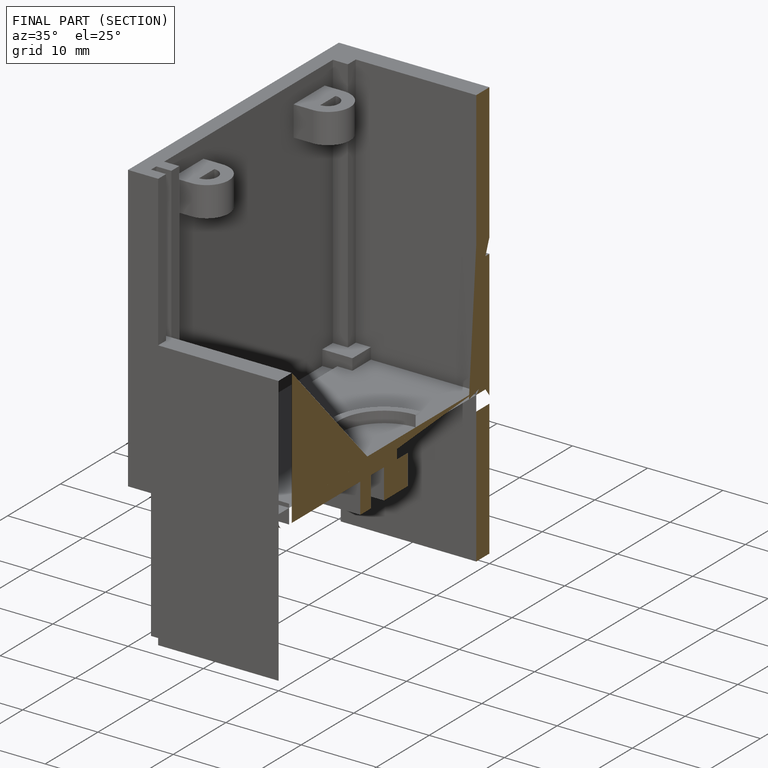
[diagram: finished part — half-section view (interior)]
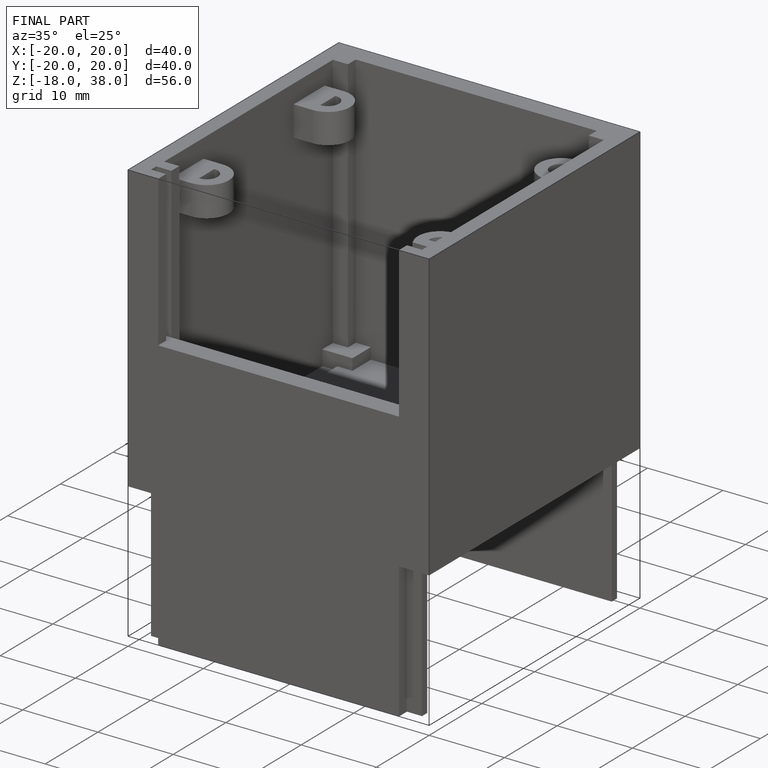
[diagram: finished part — iso view with bounding-box wireframe]
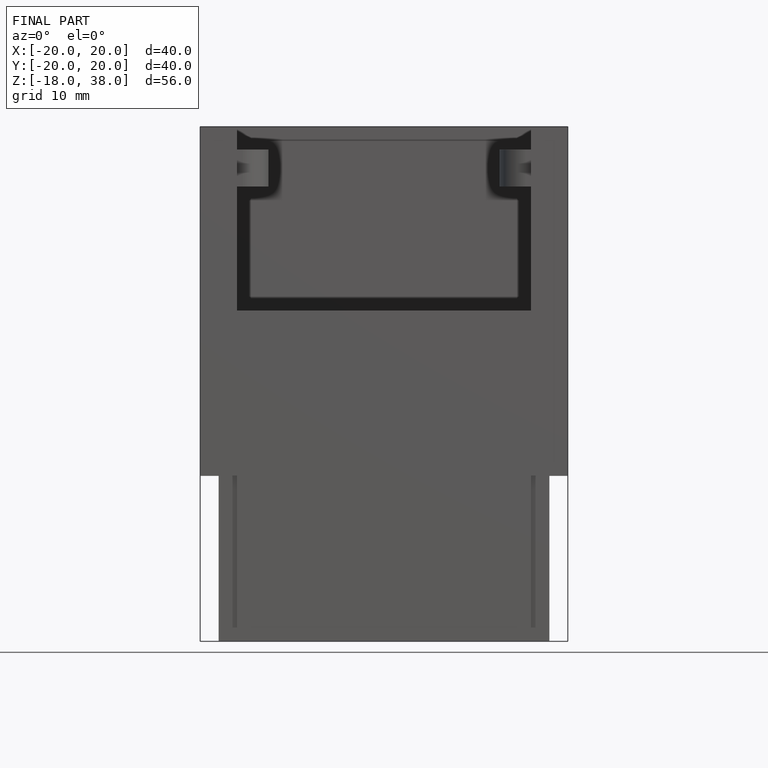
[diagram: finished part — front view with bounding-box wireframe]
